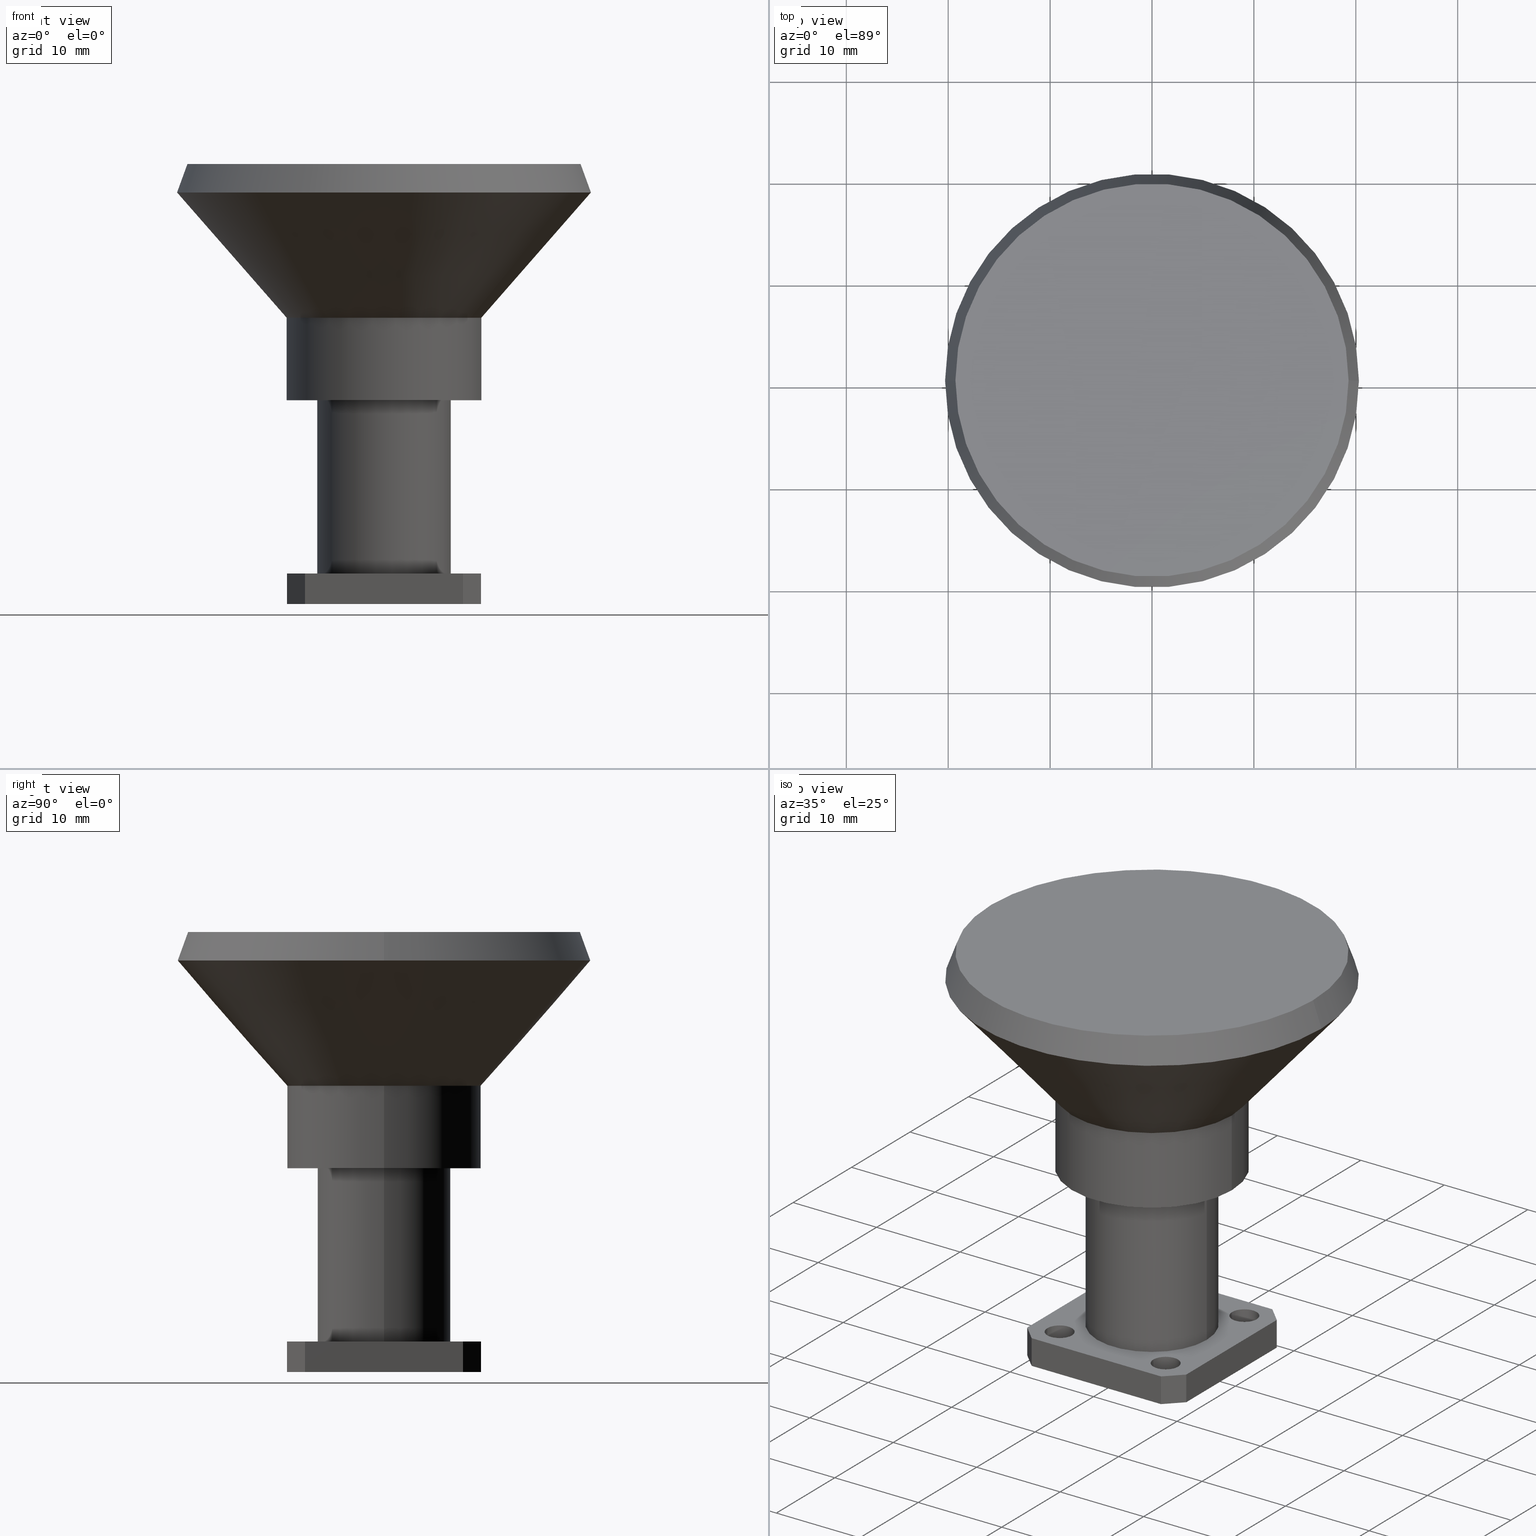
[diagram: canonical four-view strip — front | top / right | iso, engineering-drawing reading convention]
A machine part, canonical four-view strip (front | top / right | iso — engineering-drawing reading convention). The complete STEP part file that produces these views, byte-faithful:
ISO-10303-21;
HEADER;
FILE_DESCRIPTION (( 'STEP AP203' ),
    '1' );
FILE_NAME ('SAF-2434231535-328-S1.STEP',
    '2018-10-02T22:01:48',
    ( '' ),
    ( '' ),
    'SwSTEP 2.0',
    'SolidWorks 2016',
    '' );
FILE_SCHEMA (( 'CONFIG_CONTROL_DESIGN' ));
ENDSEC;

DATA;
#1 = CALENDAR_DATE ( 2018, 2, 10 ) ;
#2 = CARTESIAN_POINT ( 'NONE',  ( -0.3049999999999995500, -0.3750000000000001700, -1.699999999996315800 ) ) ;
#3 = CIRCLE ( 'NONE', #694, 0.7594999999999996200 ) ;
#4 = CC_DESIGN_APPROVAL ( #1038, ( #467 ) ) ;
#5 = DIRECTION ( 'NONE',  ( 1.000000000000000000, 0.0000000000000000000, -1.224646799147353200E-016 ) ) ;
#6 = ORIENTED_EDGE ( 'NONE', *, *, #310, .T. ) ;
#7 = DIRECTION ( 'NONE',  ( -1.000000000000000000, 0.0000000000000000000, 0.0000000000000000000 ) ) ;
#8 = EDGE_CURVE ( 'NONE', #1056, #395, #70, .T. ) ;
#9 = ORIENTED_EDGE ( 'NONE', *, *, #453, .T. ) ;
#10 = LINE ( 'NONE', #133, #410 ) ;
#11 = CARTESIAN_POINT ( 'NONE',  ( 0.3049999999999994900, 0.3749999999999998900, -1.699999999996315800 ) ) ;
#12 = ADVANCED_FACE ( 'NONE', ( #733 ), #797, .T. ) ;
#13 = FACE_BOUND ( 'NONE', #268, .T. ) ;
#14 = CARTESIAN_POINT ( 'NONE',  ( 2.083124205346053000E-016, 0.0000000000000000000, -2.935468927107230100E-012 ) ) ;
#15 = ORIENTED_EDGE ( 'NONE', *, *, #572, .F. ) ;
#16 = DIRECTION ( 'NONE',  ( 1.000000000000000000, 0.0000000000000000000, 0.0000000000000000000 ) ) ;
#17 = EDGE_LOOP ( 'NONE', ( #444, #755, #336, #199 ) ) ;
#18 = LOCAL_TIME ( 15, 1, 48.00000000000000000, #805 ) ;
#19 = DIRECTION ( 'NONE',  ( -0.6584277793867978600, 8.063414724957417900E-017, 0.7526439127049193700 ) ) ;
#20 = CARTESIAN_POINT ( 'NONE',  ( 0.3049999999999999400, -0.3750000000000001700, -1.581999999996315700 ) ) ;
#21 = CARTESIAN_POINT ( 'NONE',  ( 1.948535166980293900E-016, 0.0000000000000000000, -0.1099002899963155600 ) ) ;
#22 = ADVANCED_FACE ( 'NONE', ( #969 ), #462, .T. ) ;
#23 = FACE_OUTER_BOUND ( 'NONE', #251, .T. ) ;
#24 = EDGE_CURVE ( 'NONE', #992, #83, #313, .T. ) ;
#25 = VECTOR ( 'NONE', #738, 39.37007874015748100 ) ;
#26 = DIRECTION ( 'NONE',  ( -1.000000000000000000, 0.0000000000000000000, 0.0000000000000000000 ) ) ;
#27 = AXIS2_PLACEMENT_3D ( 'NONE', #375, #862, #38 ) ;
#28 = CYLINDRICAL_SURFACE ( 'NONE', #848, 0.1639999999647116000 ) ;
#29 = DIRECTION ( 'NONE',  ( -1.000000000000000000, 0.0000000000000000000, 0.0000000000000000000 ) ) ;
#30 = ORIENTED_EDGE ( 'NONE', *, *, #171, .T. ) ;
#31 = ORIENTED_EDGE ( 'NONE', *, *, #663, .F. ) ;
#32 = CARTESIAN_POINT ( 'NONE',  ( 0.3079999999999997700, 0.2650000000000001200, -1.581999999996315700 ) ) ;
#33 = ORIENTED_EDGE ( 'NONE', *, *, #714, .F. ) ;
#34 = EDGE_CURVE ( 'NONE', #325, #166, #776, .T. ) ;
#35 = CYLINDRICAL_SURFACE ( 'NONE', #1021, 0.05799999999999989900 ) ;
#36 = PERSON_AND_ORGANIZATION_ROLE ( 'creator' ) ;
#37 = DIRECTION ( 'NONE',  ( -0.3420201433256689300, 0.0000000000000000000, -0.9396926207859082100 ) ) ;
#38 = DIRECTION ( 'NONE',  ( -1.000000000000000000, 0.0000000000000000000, 0.0000000000000000000 ) ) ;
#39 = LINE ( 'NONE', #196, #691 ) ;
#40 = CARTESIAN_POINT ( 'NONE',  ( 0.2579999999647116200, 0.0000000000000000000, -0.9129999999963156500 ) ) ;
#41 = AXIS2_PLACEMENT_3D ( 'NONE', #426, #745, #993 ) ;
#42 = FACE_OUTER_BOUND ( 'NONE', #853, .T. ) ;
#43 = CC_DESIGN_PERSON_AND_ORGANIZATION_ASSIGNMENT ( #353, #847, ( #173 ) ) ;
#44 = CARTESIAN_POINT ( 'NONE',  ( 0.4689999999823555300, 0.2110000000176431600, -1.699999999996315800 ) ) ;
#45 = ORIENTED_EDGE ( 'NONE', *, *, #769, .F. ) ;
#46 = DIRECTION ( 'NONE',  ( -1.000000000000000000, 0.0000000000000000000, 0.0000000000000000000 ) ) ;
#47 = VECTOR ( 'NONE', #726, 39.37007874015748100 ) ;
#48 = AXIS2_PLACEMENT_3D ( 'NONE', #327, #404, #636 ) ;
#49 = ADVANCED_FACE ( 'NONE', ( #441 ), #28, .F. ) ;
#50 = DIRECTION ( 'NONE',  ( -0.0000000000000000000, -0.0000000000000000000, -1.000000000000000000 ) ) ;
#51 = EDGE_LOOP ( 'NONE', ( #256, #30, #555, #265 ) ) ;
#52 = CYLINDRICAL_SURFACE ( 'NONE', #208, 0.05799999999999989900 ) ;
#53 = LINE ( 'NONE', #585, #893 ) ;
#54 = EDGE_CURVE ( 'NONE', #417, #898, #933, .T. ) ;
#55 = DIRECTION ( 'NONE',  ( 1.224646799147353200E-016, 0.0000000000000000000, 1.000000000000000000 ) ) ;
#56 = ORIENTED_EDGE ( 'NONE', *, *, #770, .T. ) ;
#57 = ORIENTED_EDGE ( 'NONE', *, *, #719, .T. ) ;
#58 = DIRECTION ( 'NONE',  ( -1.000000000000000000, 0.0000000000000000000, 0.0000000000000000000 ) ) ;
#59 = VERTEX_POINT ( 'NONE', #169 ) ;
#60 = APPROVAL_DATE_TIME ( #281, #1011 ) ;
#61 = CONICAL_SURFACE ( 'NONE', #449, 0.7594999999999996200, 0.3490658503988660600 ) ;
#62 = EDGE_CURVE ( 'NONE', #194, #762, #743, .T. ) ;
#63 = DIRECTION ( 'NONE',  ( 1.224646799147353200E-016, 0.0000000000000000000, 1.000000000000000000 ) ) ;
#64 = ORIENTED_EDGE ( 'NONE', *, *, #233, .F. ) ;
#65 = ORIENTED_EDGE ( 'NONE', *, *, #421, .F. ) ;
#66 = EDGE_LOOP ( 'NONE', ( #274, #949 ) ) ;
#67 = ORIENTED_EDGE ( 'NONE', *, *, #849, .F. ) ;
#68 = DIRECTION ( 'NONE',  ( -1.000000000000000000, 9.106159978880877400E-017, 1.224646799147353200E-016 ) ) ;
#69 = CYLINDRICAL_SURFACE ( 'NONE', #915, 0.1639999999647116000 ) ;
#70 = LINE ( 'NONE', #783, #528 ) ;
#71 = EDGE_CURVE ( 'NONE', #170, #338, #452, .T. ) ;
#72 = EDGE_CURVE ( 'NONE', #417, #1018, #825, .T. ) ;
#73 = ORIENTED_EDGE ( 'NONE', *, *, #125, .F. ) ;
#74 = DIRECTION ( 'NONE',  ( -1.224646799147354900E-016, 0.0000000000000000000, -1.000000000000000000 ) ) ;
#75 = EDGE_LOOP ( 'NONE', ( #505, #424, #207, #618 ) ) ;
#76 = FACE_OUTER_BOUND ( 'NONE', #701, .T. ) ;
#77 = DIRECTION ( 'NONE',  ( -0.0000000000000000000, -0.0000000000000000000, -1.000000000000000000 ) ) ;
#78 = PERSON ( 'UNSPECIFIED', 'UNSPECIFIED', 'UNSPECIFIED', ('UNSPECIFIED'), ('UNSPECIFIED'), ('UNSPECIFIED') ) ;
#79 = CYLINDRICAL_SURFACE ( 'NONE', #152, 0.05799999999999989900 ) ;
#80 = CIRCLE ( 'NONE', #621, 0.05799999999999989900 ) ;
#81 = PLANE ( 'NONE',  #638 ) ;
#82 = CARTESIAN_POINT ( 'NONE',  ( 0.7994999999999999900, 0.0000000000000000000, -0.1099002899963156700 ) ) ;
#83 = VERTEX_POINT ( 'NONE', #82 ) ;
#84 = EDGE_CURVE ( 'NONE', #798, #879, #857, .T. ) ;
#85 = DIRECTION ( 'NONE',  ( 0.7071067811865469100, -0.7071067811865482400, -0.0000000000000000000 ) ) ;
#86 = AXIS2_PLACEMENT_3D ( 'NONE', #456, #1014, #1007 ) ;
#87 = CARTESIAN_POINT ( 'NONE',  ( 0.1919999999999998700, -0.2649999999999999000, -1.699999999996315800 ) ) ;
#88 = APPROVAL_PERSON_ORGANIZATION ( #544, #1011, #937 ) ;
#89 = VECTOR ( 'NONE', #162, 39.37007874015748100 ) ;
#90 = CARTESIAN_POINT ( 'NONE',  ( 0.2579999999647115700, 0.0000000000000000000, -1.581999999996315700 ) ) ;
#91 = DIRECTION ( 'NONE',  ( -0.0000000000000000000, -0.0000000000000000000, -1.000000000000000000 ) ) ;
#92 = AXIS2_PLACEMENT_3D ( 'NONE', #709, #1043, #1036 ) ;
#93 = DIRECTION ( 'NONE',  ( -0.7071067811865461300, 0.7071067811865487900, -0.0000000000000000000 ) ) ;
#94 = ORIENTED_EDGE ( 'NONE', *, *, #490, .T. ) ;
#95 = CARTESIAN_POINT ( 'NONE',  ( 0.3749999999999997800, -0.3050000000000009400, -1.581999999996315700 ) ) ;
#96 = VECTOR ( 'NONE', #804, 39.37007874015748100 ) ;
#97 = CC_DESIGN_APPROVAL ( #1011, ( #173 ) ) ;
#98 = DIRECTION ( 'NONE',  ( -0.0000000000000000000, -0.0000000000000000000, -1.000000000000000000 ) ) ;
#99 = ORIENTED_EDGE ( 'NONE', *, *, #792, .T. ) ;
#100 = ORIENTED_EDGE ( 'NONE', *, *, #827, .F. ) ;
#101 = ADVANCED_FACE ( 'NONE', ( #630, #1042, #261, #13, #401, #187 ), #896, .F. ) ;
#102 = CARTESIAN_POINT ( 'NONE',  ( 1.948536628247463100E-016, 0.0000000000000000000, -0.1098990967811205400 ) ) ;
#103 = CIRCLE ( 'NONE', #869, 0.3759999999647114500 ) ;
#104 = CC_DESIGN_DATE_AND_TIME_ASSIGNMENT ( #749, #932, ( #173 ) ) ;
#105 = CARTESIAN_POINT ( 'NONE',  ( 0.1639999999647116000, 0.0000000000000000000, -1.689999999996315800 ) ) ;
#106 = ADVANCED_FACE ( 'NONE', ( #42 ), #978, .T. ) ;
#107 = DIRECTION ( 'NONE',  ( 1.000000000000000000, 0.0000000000000000000, 0.0000000000000000000 ) ) ;
#108 = VECTOR ( 'NONE', #624, 39.37007874015748100 ) ;
#109 = DIRECTION ( 'NONE',  ( -1.000000000000000000, 0.0000000000000000000, 0.0000000000000000000 ) ) ;
#110 = VECTOR ( 'NONE', #567, 39.37007874015748100 ) ;
#111 = DIRECTION ( 'NONE',  ( -1.000000000000000000, 0.0000000000000000000, 0.0000000000000000000 ) ) ;
#112 = EDGE_CURVE ( 'NONE', #59, #340, #582, .T. ) ;
#113 = DIRECTION ( 'NONE',  ( 1.000000000000000000, 0.0000000000000000000, 0.0000000000000000000 ) ) ;
#114 = CARTESIAN_POINT ( 'NONE',  ( 9.650216777326263200E-017, 0.0000000000000000000, -0.9129999999963156500 ) ) ;
#115 = EDGE_LOOP ( 'NONE', ( #65, #119 ) ) ;
#116 = CIRCLE ( 'NONE', #287, 0.05799999999999993400 ) ;
#117 = DIRECTION ( 'NONE',  ( -0.0000000000000000000, -0.0000000000000000000, -1.000000000000000000 ) ) ;
#118 = PERSON_AND_ORGANIZATION_ROLE ( 'design_owner' ) ;
#119 = ORIENTED_EDGE ( 'NONE', *, *, #591, .F. ) ;
#120 = CARTESIAN_POINT ( 'NONE',  ( 0.3749999999999997800, -0.3050000000000009400, -1.581999999996315700 ) ) ;
#121 = DATE_TIME_ROLE ( 'creation_date' ) ;
#122 = CC_DESIGN_APPROVAL ( #675, ( #710 ) ) ;
#123 = ORIENTED_EDGE ( 'NONE', *, *, #84, .T. ) ;
#124 = CARTESIAN_POINT ( 'NONE',  ( -0.3049999999999995500, -0.3750000000000001700, -1.581999999996315700 ) ) ;
#125 = EDGE_CURVE ( 'NONE', #1035, #503, #1001, .T. ) ;
#126 = EDGE_CURVE ( 'NONE', #659, #598, #1040, .T. ) ;
#127 = CIRCLE ( 'NONE', #740, 0.05800000000000000300 ) ;
#128 = CARTESIAN_POINT ( 'NONE',  ( -0.3750000000000002200, 0.3050000000000001000, -1.581999999996315700 ) ) ;
#129 = VECTOR ( 'NONE', #767, 39.37007874015748100 ) ;
#130 = CIRCLE ( 'NONE', #923, 0.1639999999647116000 ) ;
#131 = VERTEX_POINT ( 'NONE', #975 ) ;
#132 = ORIENTED_EDGE ( 'NONE', *, *, #397, .F. ) ;
#133 = CARTESIAN_POINT ( 'NONE',  ( 0.3749999999999998300, 0.3749999999999998900, -1.581999999996315700 ) ) ;
#134 = APPROVAL_PERSON_ORGANIZATION ( #951, #1038, #1005 ) ;
#135 = CIRCLE ( 'NONE', #603, 0.05799999999999989900 ) ;
#136 = CARTESIAN_POINT ( 'NONE',  ( 0.2499999999999997500, -0.2649999999999999000, -1.581999999996315700 ) ) ;
#137 = DIRECTION ( 'NONE',  ( 1.224646799147353200E-016, 0.0000000000000000000, 1.000000000000000000 ) ) ;
#138 = EDGE_LOOP ( 'NONE', ( #309, #541, #227, #432, #873, #123, #1004, #888 ) ) ;
#139 = ORIENTED_EDGE ( 'NONE', *, *, #144, .F. ) ;
#140 = DESIGN_CONTEXT ( 'detailed design', #295, 'design' ) ;
#141 = ORIENTED_EDGE ( 'NONE', *, *, #912, .F. ) ;
#142 = LINE ( 'NONE', #1054, #110 ) ;
#143 = AXIS2_PLACEMENT_3D ( 'NONE', #146, #703, #316 ) ;
#144 = EDGE_CURVE ( 'NONE', #1037, #463, #787, .T. ) ;
#145 = EDGE_LOOP ( 'NONE', ( #716, #579 ) ) ;
#146 = CARTESIAN_POINT ( 'NONE',  ( 0.2579999999647116200, 0.0000000000000000000, -1.689999999996315800 ) ) ;
#147 = ORIENTED_EDGE ( 'NONE', *, *, #246, .T. ) ;
#148 = CC_DESIGN_SECURITY_CLASSIFICATION ( #173, ( #710 ) ) ;
#149 = DIRECTION ( 'NONE',  ( 1.000000000000000000, 0.0000000000000000000, 0.0000000000000000000 ) ) ;
#150 = APPROVAL_DATE_TIME ( #377, #675 ) ;
#151 = FACE_BOUND ( 'NONE', #145, .T. ) ;
#152 = AXIS2_PLACEMENT_3D ( 'NONE', #676, #604, #683 ) ;
#153 = CARTESIAN_POINT ( 'NONE',  ( -0.3080000000000001100, 0.2650000000000001200, -1.699999999996315800 ) ) ;
#154 = AXIS2_PLACEMENT_3D ( 'NONE', #114, #180, #16 ) ;
#155 = VECTOR ( 'NONE', #954, 39.37007874015748100 ) ;
#156 = CARTESIAN_POINT ( 'NONE',  ( 1.457329691030468400E-017, 0.0000000000000000000, -1.699999999996315800 ) ) ;
#157 = VECTOR ( 'NONE', #724, 39.37007874015748100 ) ;
#158 = CARTESIAN_POINT ( 'NONE',  ( -0.3750000000000002200, 0.3749999999999998900, -1.581999999996315700 ) ) ;
#159 = ORIENTED_EDGE ( 'NONE', *, *, #927, .T. ) ;
#160 = CARTESIAN_POINT ( 'NONE',  ( 0.3079999999999997200, -0.2649999999999999000, -1.699999999996315800 ) ) ;
#161 = COORDINATED_UNIVERSAL_TIME_OFFSET ( 8, 0, .BEHIND. ) ;
#162 = DIRECTION ( 'NONE',  ( 1.224646799147353200E-016, 0.0000000000000000000, 1.000000000000000000 ) ) ;
#163 = CARTESIAN_POINT ( 'NONE',  ( 0.3079999999999997200, 0.2650000000000001200, -1.699999999996315800 ) ) ;
#164 = EDGE_CURVE ( 'NONE', #593, #860, #130, .T. ) ;
#165 = DIRECTION ( 'NONE',  ( -1.224646799147353200E-016, 0.0000000000000000000, -1.000000000000000000 ) ) ;
#166 = VERTEX_POINT ( 'NONE', #634 ) ;
#167 = CARTESIAN_POINT ( 'NONE',  ( -0.2500000000000001700, 0.2650000000000001200, -1.699999999996315800 ) ) ;
#168 = ORIENTED_EDGE ( 'NONE', *, *, #546, .T. ) ;
#169 = CARTESIAN_POINT ( 'NONE',  ( -0.2579999999647114000, 3.159588741368012100E-017, -0.9129999999963156500 ) ) ;
#170 = VERTEX_POINT ( 'NONE', #1046 ) ;
#171 = EDGE_CURVE ( 'NONE', #879, #657, #142, .T. ) ;
#172 = ORIENTED_EDGE ( 'NONE', *, *, #510, .F. ) ;
#173 = SECURITY_CLASSIFICATION ( '', '', #763 ) ;
#174 = COORDINATED_UNIVERSAL_TIME_OFFSET ( 8, 0, .BEHIND. ) ;
#175 = CYLINDRICAL_SURFACE ( 'NONE', #938, 0.05799999999999986400 ) ;
#176 = ADVANCED_FACE ( 'NONE', ( #968 ), #322, .T. ) ;
#177 = DIRECTION ( 'NONE',  ( 1.224646799147353200E-016, 0.0000000000000000000, 1.000000000000000000 ) ) ;
#178 = EDGE_CURVE ( 'NONE', #858, #170, #461, .T. ) ;
#179 = EDGE_LOOP ( 'NONE', ( #57, #6 ) ) ;
#180 = DIRECTION ( 'NONE',  ( 1.224646799147353200E-016, 0.0000000000000000000, 1.000000000000000000 ) ) ;
#181 = ORIENTED_EDGE ( 'NONE', *, *, #961, .F. ) ;
#182 = ORIENTED_EDGE ( 'NONE', *, *, #164, .F. ) ;
#183 = DIRECTION ( 'NONE',  ( -0.0000000000000000000, 0.0000000000000000000, -1.000000000000000000 ) ) ;
#184 = LINE ( 'NONE', #959, #911 ) ;
#185 = ADVANCED_FACE ( 'NONE', ( #958 ), #302, .F. ) ;
#186 = FACE_OUTER_BOUND ( 'NONE', #525, .T. ) ;
#187 = FACE_BOUND ( 'NONE', #821, .T. ) ;
#188 = EDGE_LOOP ( 'NONE', ( #835, #820 ) ) ;
#189 = DIRECTION ( 'NONE',  ( -1.000000000000000000, 0.0000000000000000000, 0.0000000000000000000 ) ) ;
#190 = ORIENTED_EDGE ( 'NONE', *, *, #546, .F. ) ;
#191 = DIRECTION ( 'NONE',  ( 1.000000000000000000, 0.0000000000000000000, -1.281354593651155500E-016 ) ) ;
#192 = DIRECTION ( 'NONE',  ( 1.224646799147353200E-016, 0.0000000000000000000, 1.000000000000000000 ) ) ;
#193 = EDGE_CURVE ( 'NONE', #702, #380, #641, .T. ) ;
#194 = VERTEX_POINT ( 'NONE', #331 ) ;
#195 = DIRECTION ( 'NONE',  ( 0.6584277793867980800, 0.0000000000000000000, 0.7526439127049191500 ) ) ;
#196 = CARTESIAN_POINT ( 'NONE',  ( 0.1919999999999999200, 0.2650000000000001200, -1.699999999996315800 ) ) ;
#197 = ORIENTED_EDGE ( 'NONE', *, *, #292, .T. ) ;
#198 = VERTEX_POINT ( 'NONE', #654 ) ;
#199 = ORIENTED_EDGE ( 'NONE', *, *, #329, .T. ) ;
#200 = AXIS2_PLACEMENT_3D ( 'NONE', #394, #74, #419 ) ;
#201 = EDGE_CURVE ( 'NONE', #1037, #867, #80, .T. ) ;
#202 = ORIENTED_EDGE ( 'NONE', *, *, #343, .F. ) ;
#203 = FACE_BOUND ( 'NONE', #188, .T. ) ;
#204 = CARTESIAN_POINT ( 'NONE',  ( -0.7594999999999994000, 0.0000000000000000000, -2.935375915182835100E-012 ) ) ;
#205 =( NAMED_UNIT ( * ) PLANE_ANGLE_UNIT ( ) SI_UNIT ( $, .RADIAN. ) );
#206 = EDGE_LOOP ( 'NONE', ( #386, #566, #707, #836 ) ) ;
#207 = ORIENTED_EDGE ( 'NONE', *, *, #572, .T. ) ;
#208 = AXIS2_PLACEMENT_3D ( 'NONE', #293, #117, #939 ) ;
#209 = LINE ( 'NONE', #966, #96 ) ;
#210 =( NAMED_UNIT ( * ) SI_UNIT ( $, .STERADIAN. ) SOLID_ANGLE_UNIT ( ) );
#211 = VECTOR ( 'NONE', #319, 39.37007874015748100 ) ;
#212 = CARTESIAN_POINT ( 'NONE',  ( -0.3049999999999998300, -0.3750000000000001700, -1.581999999996315700 ) ) ;
#213 = ORIENTED_EDGE ( 'NONE', *, *, #440, .T. ) ;
#214 = ORIENTED_EDGE ( 'NONE', *, *, #927, .F. ) ;
#215 = ORIENTED_EDGE ( 'NONE', *, *, #900, .F. ) ;
#216 = CARTESIAN_POINT ( 'NONE',  ( 0.3049999999999999400, -0.3750000000000001700, -1.699999999996315800 ) ) ;
#217 = AXIS2_PLACEMENT_3D ( 'NONE', #415, #495, #189 ) ;
#218 = CARTESIAN_POINT ( 'NONE',  ( 0.0000000000000000000, 0.0000000000000000000, -1.701000000000000100 ) ) ;
#219 = DATE_AND_TIME ( #420, #863 ) ;
#220 = CARTESIAN_POINT ( 'NONE',  ( 0.1919999999999997500, -0.2649999999999999000, -1.699999999996315800 ) ) ;
#221 = ORIENTED_EDGE ( 'NONE', *, *, #34, .F. ) ;
#222 = FACE_OUTER_BOUND ( 'NONE', #314, .T. ) ;
#223 = VECTOR ( 'NONE', #434, 39.37007874015748100 ) ;
#224 = DIRECTION ( 'NONE',  ( 1.224646799147353200E-016, 0.0000000000000000000, 1.000000000000000000 ) ) ;
#225 = ORIENTED_EDGE ( 'NONE', *, *, #379, .F. ) ;
#226 = CARTESIAN_POINT ( 'NONE',  ( 0.1919999999999998100, 0.2650000000000001200, -1.699999999996315800 ) ) ;
#227 = ORIENTED_EDGE ( 'NONE', *, *, #8, .T. ) ;
#228 = LOCAL_TIME ( 15, 1, 48.00000000000000000, #925 ) ;
#229 = EDGE_CURVE ( 'NONE', #1056, #198, #383, .T. ) ;
#230 = FACE_OUTER_BOUND ( 'NONE', #499, .T. ) ;
#231 = VECTOR ( 'NONE', #55, 39.37007874015748100 ) ;
#232 = EDGE_CURVE ( 'NONE', #1048, #798, #53, .T. ) ;
#233 = EDGE_CURVE ( 'NONE', #945, #325, #693, .T. ) ;
#234 = DIRECTION ( 'NONE',  ( -0.0000000000000000000, -0.0000000000000000000, -1.000000000000000000 ) ) ;
#235 = VECTOR ( 'NONE', #571, 39.37007874015748100 ) ;
#236 = ORIENTED_EDGE ( 'NONE', *, *, #304, .F. ) ;
#237 = CARTESIAN_POINT ( 'NONE',  ( 1.948535166980293900E-016, 0.0000000000000000000, -0.1099002899963155600 ) ) ;
#238 = APPROVAL_DATE_TIME ( #219, #1038 ) ;
#239 = ORIENTED_EDGE ( 'NONE', *, *, #600, .T. ) ;
#240 = DIRECTION ( 'NONE',  ( -0.0000000000000000000, -0.0000000000000000000, -1.000000000000000000 ) ) ;
#241 = CARTESIAN_POINT ( 'NONE',  ( 1.445083222993876700E-017, 0.0000000000000000000, -1.581999999996315700 ) ) ;
#242 = ORIENTED_EDGE ( 'NONE', *, *, #600, .F. ) ;
#243 = EDGE_LOOP ( 'NONE', ( #695, #708 ) ) ;
#244 = CIRCLE ( 'NONE', #428, 0.3759999999647114500 ) ;
#245 = AXIS2_PLACEMENT_3D ( 'NONE', #889, #406, #254 ) ;
#246 = EDGE_CURVE ( 'NONE', #320, #398, #731, .T. ) ;
#247 = ORIENTED_EDGE ( 'NONE', *, *, #379, .T. ) ;
#248 = ORIENTED_EDGE ( 'NONE', *, *, #875, .F. ) ;
#249 = CC_DESIGN_PERSON_AND_ORGANIZATION_ASSIGNMENT ( #390, #118, ( #407 ) ) ;
#250 = DIRECTION ( 'NONE',  ( 1.224646799147353200E-016, 0.0000000000000000000, 1.000000000000000000 ) ) ;
#251 = EDGE_LOOP ( 'NONE', ( #606, #168, #597, #607 ) ) ;
#252 = DIRECTION ( 'NONE',  ( -0.0000000000000000000, -0.0000000000000000000, -1.000000000000000000 ) ) ;
#253 = FACE_OUTER_BOUND ( 'NONE', #206, .T. ) ;
#254 = DIRECTION ( 'NONE',  ( 1.000000000000000000, 0.0000000000000000000, 0.0000000000000000000 ) ) ;
#255 = DIRECTION ( 'NONE',  ( -1.000000000000000000, 0.0000000000000000000, 1.224646799147353200E-016 ) ) ;
#256 = ORIENTED_EDGE ( 'NONE', *, *, #651, .F. ) ;
#257 = VERTEX_POINT ( 'NONE', #105 ) ;
#258 = ADVANCED_FACE ( 'NONE', ( #1024 ), #362, .T. ) ;
#259 = LINE ( 'NONE', #451, #501 ) ;
#260 = CARTESIAN_POINT ( 'NONE',  ( 2.083124205346053000E-016, 0.0000000000000000000, -2.935468927107230100E-012 ) ) ;
#261 = FACE_BOUND ( 'NONE', #243, .T. ) ;
#262 = CARTESIAN_POINT ( 'NONE',  ( -0.3049999999999998800, 0.3749999999999998900, -1.581999999996315700 ) ) ;
#263 = ORIENTED_EDGE ( 'NONE', *, *, #673, .T. ) ;
#264 = AXIS2_PLACEMENT_3D ( 'NONE', #136, #786, #859 ) ;
#265 = ORIENTED_EDGE ( 'NONE', *, *, #178, .T. ) ;
#266 = PLANE ( 'NONE',  #986 ) ;
#267 = ADVANCED_FACE ( 'NONE', ( #759 ), #439, .T. ) ;
#268 = EDGE_LOOP ( 'NONE', ( #213, #430 ) ) ;
#269 = AXIS2_PLACEMENT_3D ( 'NONE', #167, #252, #642 ) ;
#270 = DIRECTION ( 'NONE',  ( -1.000000000000000000, 0.0000000000000000000, 0.0000000000000000000 ) ) ;
#271 = LINE ( 'NONE', #557, #952 ) ;
#272 = CARTESIAN_POINT ( 'NONE',  ( 2.083124205346052800E-016, 0.0000000000000000000, -2.935643853991617400E-012 ) ) ;
#273 = AXIS2_PLACEMENT_3D ( 'NONE', #370, #356, #113 ) ;
#274 = ORIENTED_EDGE ( 'NONE', *, *, #753, .T. ) ;
#275 = FACE_OUTER_BOUND ( 'NONE', #51, .T. ) ;
#276 = EDGE_LOOP ( 'NONE', ( #746, #828, #841, #801 ) ) ;
#277 = EDGE_CURVE ( 'NONE', #860, #1029, #312, .T. ) ;
#278 = DIRECTION ( 'NONE',  ( 1.224646799147353200E-016, 0.0000000000000000000, 1.000000000000000000 ) ) ;
#279 = VERTEX_POINT ( 'NONE', #262 ) ;
#280 = DIRECTION ( 'NONE',  ( -1.000000000000000000, 0.0000000000000000000, 1.224646799144300100E-016 ) ) ;
#281 = DATE_AND_TIME ( #492, #228 ) ;
#282 = CARTESIAN_POINT ( 'NONE',  ( -0.3080000000000001100, 0.2650000000000001200, -1.581999999996315700 ) ) ;
#283 = LINE ( 'NONE', #894, #89 ) ;
#284 = DIRECTION ( 'NONE',  ( -1.224646799147353200E-016, -0.0000000000000000000, -1.000000000000000000 ) ) ;
#285 = ORIENTED_EDGE ( 'NONE', *, *, #201, .T. ) ;
#286 = ORIENTED_EDGE ( 'NONE', *, *, #277, .T. ) ;
#287 = AXIS2_PLACEMENT_3D ( 'NONE', #817, #902, #721 ) ;
#288 = CONICAL_SURFACE ( 'NONE', #554, 0.7994999999999998800, 0.7187279169351729100 ) ;
#289 = CARTESIAN_POINT ( 'NONE',  ( -0.1920000000000003400, -0.2649999999999999000, -1.581999999996315700 ) ) ;
#290 = EDGE_LOOP ( 'NONE', ( #159, #979, #711, #866 ) ) ;
#291 = APPLICATION_PROTOCOL_DEFINITION ( 'international standard', 'config_control_design', 1994, #527 ) ;
#292 = EDGE_CURVE ( 'NONE', #1018, #909, #610, .T. ) ;
#293 = CARTESIAN_POINT ( 'NONE',  ( 0.2499999999999997500, -0.2649999999999999000, -1.699999999996315800 ) ) ;
#294 = AXIS2_PLACEMENT_3D ( 'NONE', #120, #592, #1009 ) ;
#295 = APPLICATION_CONTEXT ( 'configuration controlled 3d designs of mechanical parts and assemblies' ) ;
#296 = LINE ( 'NONE', #653, #47 ) ;
#297 = CARTESIAN_POINT ( 'NONE',  ( 0.2499999999999997500, -0.2649999999999999000, -1.699999999996315800 ) ) ;
#298 = ADVANCED_FACE ( 'NONE', ( #186 ), #831, .F. ) ;
#299 = DIRECTION ( 'NONE',  ( -0.0000000000000000000, -0.0000000000000000000, -1.000000000000000000 ) ) ;
#300 = ORIENTED_EDGE ( 'NONE', *, *, #411, .F. ) ;
#301 = LINE ( 'NONE', #599, #129 ) ;
#302 = CYLINDRICAL_SURFACE ( 'NONE', #217, 0.05799999999999993400 ) ;
#303 = CARTESIAN_POINT ( 'NONE',  ( -0.3080000000000001600, 0.2650000000000001200, -1.699999999996315800 ) ) ;
#304 = EDGE_CURVE ( 'NONE', #945, #403, #811, .T. ) ;
#305 = CALENDAR_DATE ( 2018, 2, 10 ) ;
#306 = LINE ( 'NONE', #153, #737 ) ;
#307 = AXIS2_PLACEMENT_3D ( 'NONE', #806, #914, #422 ) ;
#308 = CARTESIAN_POINT ( 'NONE',  ( -0.2500000000000002200, -0.2649999999999999000, -1.581999999996315700 ) ) ;
#309 = ORIENTED_EDGE ( 'NONE', *, *, #609, .T. ) ;
#310 = EDGE_CURVE ( 'NONE', #1029, #257, #620, .T. ) ;
#311 = CARTESIAN_POINT ( 'NONE',  ( -0.2500000000000002200, -0.2649999999999999000, -1.699999999996315800 ) ) ;
#312 = LINE ( 'NONE', #741, #223 ) ;
#313 = CIRCLE ( 'NONE', #92, 0.7994999999999998800 ) ;
#314 = EDGE_LOOP ( 'NONE', ( #660, #515, #670, #1034 ) ) ;
#315 = CARTESIAN_POINT ( 'NONE',  ( 0.3049999999999999400, -0.3750000000000001700, -1.581999999996315700 ) ) ;
#316 = DIRECTION ( 'NONE',  ( -1.000000000000000000, 0.0000000000000000000, 1.224646799147353200E-016 ) ) ;
#317 = AXIS2_PLACEMENT_3D ( 'NONE', #297, #692, #58 ) ;
#318 = CIRCLE ( 'NONE', #269, 0.05800000000000000300 ) ;
#319 = DIRECTION ( 'NONE',  ( -0.7071067811865469100, 0.7071067811865482400, 8.659560562354925500E-017 ) ) ;
#320 = VERTEX_POINT ( 'NONE', #20 ) ;
#321 = CIRCLE ( 'NONE', #317, 0.05800000000000000300 ) ;
#322 = CYLINDRICAL_SURFACE ( 'NONE', #448, 0.3759999999647115100 ) ;
#323 = CARTESIAN_POINT ( 'NONE',  ( 0.1919999999999998700, -0.2649999999999999000, -1.581999999996315700 ) ) ;
#324 = DIRECTION ( 'NONE',  ( -1.000000000000000000, 0.0000000000000000000, 0.0000000000000000000 ) ) ;
#325 = VERTEX_POINT ( 'NONE', #516 ) ;
#326 = CARTESIAN_POINT ( 'NONE',  ( -0.2500000000000002200, -0.2649999999999999000, -1.699999999996315800 ) ) ;
#327 = CARTESIAN_POINT ( 'NONE',  ( 9.650216777326263200E-017, 0.0000000000000000000, -0.9129999999963156500 ) ) ;
#328 = SHAPE_DEFINITION_REPRESENTATION ( #744, #886 ) ;
#329 = EDGE_CURVE ( 'NONE', #785, #395, #486, .T. ) ;
#330 = FACE_OUTER_BOUND ( 'NONE', #138, .T. ) ;
#331 = CARTESIAN_POINT ( 'NONE',  ( 0.3079999999999997200, -0.2649999999999999000, -1.581999999996315700 ) ) ;
#332 = ORIENTED_EDGE ( 'NONE', *, *, #453, .F. ) ;
#333 = DIRECTION ( 'NONE',  ( 1.000000000000000000, 0.0000000000000000000, -1.224646799144300100E-016 ) ) ;
#334 = UNCERTAINTY_MEASURE_WITH_UNIT (LENGTH_MEASURE( 1.000000000000000100E-005 ), #594, 'distance_accuracy_value', 'NONE');
#335 = EDGE_CURVE ( 'NONE', #83, #325, #667, .T. ) ;
#336 = ORIENTED_EDGE ( 'NONE', *, *, #769, .T. ) ;
#337 = CARTESIAN_POINT ( 'NONE',  ( 0.3049999999999994900, 0.3749999999999998900, -1.581999999996315700 ) ) ;
#338 = VERTEX_POINT ( 'NONE', #764 ) ;
#339 = CARTESIAN_POINT ( 'NONE',  ( -0.2500000000000001700, 0.2650000000000001200, -1.581999999996315700 ) ) ;
#340 = VERTEX_POINT ( 'NONE', #40 ) ;
#341 = CARTESIAN_POINT ( 'NONE',  ( 1.355684006660631900E-016, 0.0000000000000000000, -0.5939999999963157000 ) ) ;
#342 = FACE_BOUND ( 'NONE', #919, .T. ) ;
#343 = EDGE_CURVE ( 'NONE', #395, #1048, #947, .T. ) ;
#344 = CARTESIAN_POINT ( 'NONE',  ( 2.083124205346052800E-016, 0.0000000000000000000, -2.935643853991617400E-012 ) ) ;
#345 = FACE_OUTER_BOUND ( 'NONE', #551, .T. ) ;
#346 = DIRECTION ( 'NONE',  ( 1.224646799147353200E-016, 0.0000000000000000000, 1.000000000000000000 ) ) ;
#347 = ADVANCED_FACE ( 'NONE', ( #718 ), #550, .F. ) ;
#348 = VECTOR ( 'NONE', #513, 39.37007874015748100 ) ;
#349 = VECTOR ( 'NONE', #962, 39.37007874015748100 ) ;
#350 = CARTESIAN_POINT ( 'NONE',  ( 0.3759999999647116200, 0.0000000000000000000, -0.5939999999963158100 ) ) ;
#351 = ADVANCED_FACE ( 'NONE', ( #1039 ), #361, .F. ) ;
#352 = ORIENTED_EDGE ( 'NONE', *, *, #62, .F. ) ;
#353 = PERSON_AND_ORGANIZATION ( #78, #674 ) ;
#354 = DIRECTION ( 'NONE',  ( -1.224646799147354900E-016, 0.0000000000000000000, -1.000000000000000000 ) ) ;
#355 = LINE ( 'NONE', #581, #926 ) ;
#356 = DIRECTION ( 'NONE',  ( 0.0000000000000000000, 0.0000000000000000000, 1.000000000000000000 ) ) ;
#357 = AXIS2_PLACEMENT_3D ( 'NONE', #559, #729, #5 ) ;
#358 = CARTESIAN_POINT ( 'NONE',  ( 0.2499999999999997500, -0.2649999999999999000, -1.581999999996315700 ) ) ;
#359 = AXIS2_PLACEMENT_3D ( 'NONE', #344, #354, #280 ) ;
#360 = EDGE_LOOP ( 'NONE', ( #242, #736, #202, #416 ) ) ;
#361 = PLANE ( 'NONE',  #294 ) ;
#362 = CYLINDRICAL_SURFACE ( 'NONE', #672, 0.7994999999999997700 ) ;
#363 = DIRECTION ( 'NONE',  ( 0.0000000000000000000, 0.0000000000000000000, 1.000000000000000000 ) ) ;
#364 = EDGE_CURVE ( 'NONE', #657, #858, #301, .T. ) ;
#365 = ORIENTED_EDGE ( 'NONE', *, *, #411, .T. ) ;
#366 = DIRECTION ( 'NONE',  ( -1.000000000000000000, 0.0000000000000000000, 0.0000000000000000000 ) ) ;
#367 = CARTESIAN_POINT ( 'NONE',  ( 0.3749999999999997800, -0.3050000000000006600, -1.699999999996315800 ) ) ;
#368 = VECTOR ( 'NONE', #98, 39.37007874015748100 ) ;
#369 = APPROVAL_STATUS ( 'not_yet_approved' ) ;
#370 = CARTESIAN_POINT ( 'NONE',  ( 1.457329691030468400E-017, 0.0000000000000000000, -1.699999999996315800 ) ) ;
#371 = AXIS2_PLACEMENT_3D ( 'NONE', #308, #950, #378 ) ;
#372 =( LENGTH_UNIT ( ) NAMED_UNIT ( * ) SI_UNIT ( $, .METRE. ) );
#373 = CYLINDRICAL_SURFACE ( 'NONE', #861, 0.2579999999647115700 ) ;
#374 = ADVANCED_FACE ( 'NONE', ( #1013 ), #79, .F. ) ;
#375 = CARTESIAN_POINT ( 'NONE',  ( 0.2499999999999997500, -0.2649999999999999000, -1.699999999996315800 ) ) ;
#376 = ORIENTED_EDGE ( 'NONE', *, *, #126, .T. ) ;
#377 = DATE_AND_TIME ( #587, #18 ) ;
#378 = DIRECTION ( 'NONE',  ( -1.000000000000000000, 0.0000000000000000000, 0.0000000000000000000 ) ) ;
#379 = EDGE_CURVE ( 'NONE', #403, #166, #1012, .T. ) ;
#380 = VERTEX_POINT ( 'NONE', #282 ) ;
#381 = ORIENTED_EDGE ( 'NONE', *, *, #995, .F. ) ;
#382 = DIRECTION ( 'NONE',  ( 1.000000000000000000, 0.0000000000000000000, 0.0000000000000000000 ) ) ;
#383 = LINE ( 'NONE', #826, #348 ) ;
#384 = DIRECTION ( 'NONE',  ( 0.7071067811865482400, 0.7071067811865469100, -8.659560562354941500E-017 ) ) ;
#385 = EDGE_LOOP ( 'NONE', ( #955, #182, #365, #628 ) ) ;
#386 = ORIENTED_EDGE ( 'NONE', *, *, #471, .T. ) ;
#387 = ORIENTED_EDGE ( 'NONE', *, *, #792, .F. ) ;
#388 = EDGE_CURVE ( 'NONE', #860, #593, #892, .T. ) ;
#389 = DIRECTION ( 'NONE',  ( -0.0000000000000000000, -0.0000000000000000000, -1.000000000000000000 ) ) ;
#390 = PERSON_AND_ORGANIZATION ( #78, #674 ) ;
#391 = FACE_OUTER_BOUND ( 'NONE', #17, .T. ) ;
#392 = AXIS2_PLACEMENT_3D ( 'NONE', #21, #834, #191 ) ;
#393 = DIRECTION ( 'NONE',  ( 1.000000000000000000, 0.0000000000000000000, -1.281354593651155500E-016 ) ) ;
#394 = CARTESIAN_POINT ( 'NONE',  ( 1.948536628247463100E-016, 0.0000000000000000000, -0.1098990967811205400 ) ) ;
#395 = VERTEX_POINT ( 'NONE', #367 ) ;
#396 = ORIENTED_EDGE ( 'NONE', *, *, #953, .T. ) ;
#397 = EDGE_CURVE ( 'NONE', #867, #586, #39, .T. ) ;
#398 = VERTEX_POINT ( 'NONE', #124 ) ;
#399 = FACE_OUTER_BOUND ( 'NONE', #75, .T. ) ;
#400 = VECTOR ( 'NONE', #833, 39.37007874015748100 ) ;
#401 = FACE_OUTER_BOUND ( 'NONE', #843, .T. ) ;
#402 = ORIENTED_EDGE ( 'NONE', *, *, #725, .F. ) ;
#403 = VERTEX_POINT ( 'NONE', #204 ) ;
#404 = DIRECTION ( 'NONE',  ( 1.224646799147353200E-016, 0.0000000000000000000, 1.000000000000000000 ) ) ;
#405 = PLANE ( 'NONE',  #632 ) ;
#406 = DIRECTION ( 'NONE',  ( 1.224646799147353200E-016, 0.0000000000000000000, 1.000000000000000000 ) ) ;
#407 = PRODUCT ( 'SAF-2434231535-328-S1', 'SAF-2434231535-328-S1', '', ( #928 ) ) ;
#408 = ORIENTED_EDGE ( 'NONE', *, *, #62, .T. ) ;
#409 = DIRECTION ( 'NONE',  ( 1.000000000000000000, 0.0000000000000000000, 0.0000000000000000000 ) ) ;
#410 = VECTOR ( 'NONE', #617, 39.37007874015748100 ) ;
#411 = EDGE_CURVE ( 'NONE', #593, #257, #259, .T. ) ;
#412 = DIRECTION ( 'NONE',  ( -1.224646799147353200E-016, 0.0000000000000000000, -1.000000000000000000 ) ) ;
#413 =( GEOMETRIC_REPRESENTATION_CONTEXT ( 3 ) GLOBAL_UNCERTAINTY_ASSIGNED_CONTEXT ( ( #334 ) ) GLOBAL_UNIT_ASSIGNED_CONTEXT ( ( #594, #205, #210 ) ) REPRESENTATION_CONTEXT ( 'NONE', 'WORKASPACE' ) );
#414 = EDGE_LOOP ( 'NONE', ( #99, #396, #214, #215 ) ) ;
#415 = CARTESIAN_POINT ( 'NONE',  ( -0.2500000000000001700, 0.2650000000000001200, -1.699999999996315800 ) ) ;
#416 = ORIENTED_EDGE ( 'NONE', *, *, #329, .F. ) ;
#417 = VERTEX_POINT ( 'NONE', #289 ) ;
#418 = CARTESIAN_POINT ( 'NONE',  ( 0.3749999999999997800, -0.3050000000000006600, -1.581999999996315700 ) ) ;
#419 = DIRECTION ( 'NONE',  ( 1.000000000000000000, 0.0000000000000000000, -1.281354593651155700E-016 ) ) ;
#420 = CALENDAR_DATE ( 2018, 2, 10 ) ;
#421 = EDGE_CURVE ( 'NONE', #586, #463, #655, .T. ) ;
#422 = DIRECTION ( 'NONE',  ( -1.224646799147353200E-016, 0.0000000000000000000, -1.000000000000000000 ) ) ;
#423 = DIRECTION ( 'NONE',  ( -1.224646799147353200E-016, 0.0000000000000000000, -1.000000000000000000 ) ) ;
#424 = ORIENTED_EDGE ( 'NONE', *, *, #725, .T. ) ;
#425 = ADVANCED_FACE ( 'NONE', ( #1053 ), #52, .F. ) ;
#426 = CARTESIAN_POINT ( 'NONE',  ( -0.3750000000000002200, 0.3050000000000001000, -1.581999999996315700 ) ) ;
#427 = FACE_OUTER_BOUND ( 'NONE', #385, .T. ) ;
#428 = AXIS2_PLACEMENT_3D ( 'NONE', #782, #137, #771 ) ;
#429 = VECTOR ( 'NONE', #77, 39.37007874015748100 ) ;
#430 = ORIENTED_EDGE ( 'NONE', *, *, #912, .T. ) ;
#431 = CARTESIAN_POINT ( 'NONE',  ( 0.3749999999999997800, -0.3750000000000001700, -1.581999999996315700 ) ) ;
#432 = ORIENTED_EDGE ( 'NONE', *, *, #343, .T. ) ;
#433 = ADVANCED_FACE ( 'NONE', ( #742 ), #538, .T. ) ;
#434 = DIRECTION ( 'NONE',  ( 1.224646799147353200E-016, 0.0000000000000000000, 1.000000000000000000 ) ) ;
#435 = CARTESIAN_POINT ( 'NONE',  ( -0.2579999999647115700, 3.159588741368012700E-017, -1.701000000000000100 ) ) ;
#436 = ADVANCED_FACE ( 'NONE', ( #399 ), #373, .T. ) ;
#437 = FACE_OUTER_BOUND ( 'NONE', #450, .T. ) ;
#438 = CARTESIAN_POINT ( 'NONE',  ( -0.1920000000000001700, 0.2650000000000001200, -1.699999999996315800 ) ) ;
#439 = CYLINDRICAL_SURFACE ( 'NONE', #984, 0.3759999999647115100 ) ;
#440 = EDGE_CURVE ( 'NONE', #659, #194, #629, .T. ) ;
#441 = FACE_OUTER_BOUND ( 'NONE', #622, .T. ) ;
#442 = ORIENTED_EDGE ( 'NONE', *, *, #229, .F. ) ;
#443 = CARTESIAN_POINT ( 'NONE',  ( 0.3749999999999998300, 0.3749999999999998900, -1.581999999996315700 ) ) ;
#444 = ORIENTED_EDGE ( 'NONE', *, *, #8, .F. ) ;
#445 = DIRECTION ( 'NONE',  ( 1.000000000000000000, 0.0000000000000000000, 0.0000000000000000000 ) ) ;
#446 = APPROVAL_STATUS ( 'not_yet_approved' ) ;
#447 = FACE_BOUND ( 'NONE', #936, .T. ) ;
#448 = AXIS2_PLACEMENT_3D ( 'NONE', #1049, #250, #899 ) ;
#449 = AXIS2_PLACEMENT_3D ( 'NONE', #272, #588, #832 ) ;
#450 = EDGE_LOOP ( 'NONE', ( #897, #854, #197, #67 ) ) ;
#451 = CARTESIAN_POINT ( 'NONE',  ( 0.1639999999647116000, 0.0000000000000000000, -1.701000000000000100 ) ) ;
#452 = LINE ( 'NONE', #489, #235 ) ;
#453 = EDGE_CURVE ( 'NONE', #503, #813, #967, .T. ) ;
#454 = CARTESIAN_POINT ( 'NONE',  ( -0.7594999999999994000, 0.0000000000000000000, -2.935550842067222400E-012 ) ) ;
#455 = ORIENTED_EDGE ( 'NONE', *, *, #521, .F. ) ;
#456 = CARTESIAN_POINT ( 'NONE',  ( 1.457329691030468400E-017, 0.0000000000000000000, -1.581999999996315700 ) ) ;
#457 = LOCAL_TIME ( 15, 1, 48.00000000000000000, #174 ) ;
#458 = DIRECTION ( 'NONE',  ( -1.224646799147353200E-016, 0.0000000000000000000, -1.000000000000000000 ) ) ;
#459 = VECTOR ( 'NONE', #240, 39.37007874015748100 ) ;
#460 = DIRECTION ( 'NONE',  ( 1.000000000000000000, 0.0000000000000000000, 0.0000000000000000000 ) ) ;
#461 = LINE ( 'NONE', #509, #400 ) ;
#462 = CYLINDRICAL_SURFACE ( 'NONE', #679, 0.2579999999647115700 ) ;
#463 = VERTEX_POINT ( 'NONE', #470 ) ;
#464 = EDGE_CURVE ( 'NONE', #898, #417, #799, .T. ) ;
#465 = DIRECTION ( 'NONE',  ( 0.7071067811865502400, 0.7071067811865448000, -0.0000000000000000000 ) ) ;
#466 = CARTESIAN_POINT ( 'NONE',  ( 0.0000000000000000000, 0.0000000000000000000, -1.701000000000000100 ) ) ;
#467 = PRODUCT_DEFINITION ( 'UNKNOWN', '', #710, #140 ) ;
#468 = ORIENTED_EDGE ( 'NONE', *, *, #976, .T. ) ;
#469 = CIRCLE ( 'NONE', #86, 0.2579999999647115700 ) ;
#470 = CARTESIAN_POINT ( 'NONE',  ( 0.3079999999999998300, 0.2650000000000001200, -1.699999999996315800 ) ) ;
#471 = EDGE_CURVE ( 'NONE', #279, #548, #10, .T. ) ;
#472 = DIRECTION ( 'NONE',  ( 1.000000000000000000, 0.0000000000000000000, 0.0000000000000000000 ) ) ;
#473 = EDGE_LOOP ( 'NONE', ( #678, #614 ) ) ;
#474 = VECTOR ( 'NONE', #930, 39.37007874015748100 ) ;
#475 = CARTESIAN_POINT ( 'NONE',  ( 1.347111479513268700E-018, 0.0000000000000000000, -1.689999999996315800 ) ) ;
#476 = EDGE_LOOP ( 'NONE', ( #64, #100, #247, #221 ) ) ;
#477 = ORIENTED_EDGE ( 'NONE', *, *, #440, .F. ) ;
#478 = AXIS2_PLACEMENT_3D ( 'NONE', #779, #50, #871 ) ;
#479 = CARTESIAN_POINT ( 'NONE',  ( -0.3750000000000002800, -0.3049999999999992700, -1.581999999996315700 ) ) ;
#480 = VECTOR ( 'NONE', #195, 39.37007874015748100 ) ;
#481 = EDGE_LOOP ( 'NONE', ( #332, #507, #263, #190 ) ) ;
#482 = EDGE_LOOP ( 'NONE', ( #468, #285 ) ) ;
#483 = CARTESIAN_POINT ( 'NONE',  ( -0.1920000000000002500, 0.2650000000000001200, -1.581999999996315700 ) ) ;
#484 = VECTOR ( 'NONE', #465, 39.37007874015748100 ) ;
#485 = AXIS2_PLACEMENT_3D ( 'NONE', #443, #917, #739 ) ;
#486 = LINE ( 'NONE', #95, #839 ) ;
#487 = DIRECTION ( 'NONE',  ( -9.106159978880878600E-017, -1.000000000000000000, 0.0000000000000000000 ) ) ;
#488 = EDGE_LOOP ( 'NONE', ( #352, #477, #376, #526 ) ) ;
#489 = CARTESIAN_POINT ( 'NONE',  ( -0.2110000000176431600, 0.4689999999823565900, -1.699999999996315800 ) ) ;
#490 = EDGE_CURVE ( 'NONE', #762, #598, #321, .T. ) ;
#491 = ORIENTED_EDGE ( 'NONE', *, *, #719, .F. ) ;
#492 = CALENDAR_DATE ( 2018, 2, 10 ) ;
#493 = CARTESIAN_POINT ( 'NONE',  ( -0.3750000000000002200, 0.3050000000000001000, -1.581999999996315700 ) ) ;
#494 = FACE_OUTER_BOUND ( 'NONE', #497, .T. ) ;
#495 = DIRECTION ( 'NONE',  ( -0.0000000000000000000, -0.0000000000000000000, -1.000000000000000000 ) ) ;
#496 = DIRECTION ( 'NONE',  ( 1.224646799147353200E-016, 0.0000000000000000000, 1.000000000000000000 ) ) ;
#497 = EDGE_LOOP ( 'NONE', ( #1003, #547, #147, #819 ) ) ;
#498 = ORIENTED_EDGE ( 'NONE', *, *, #995, .T. ) ;
#499 = EDGE_LOOP ( 'NONE', ( #73, #31 ) ) ;
#500 = AXIS2_PLACEMENT_3D ( 'NONE', #14, #987, #577 ) ;
#501 = VECTOR ( 'NONE', #668, 39.37007874015748100 ) ;
#502 = CC_DESIGN_PERSON_AND_ORGANIZATION_ASSIGNMENT ( #1020, #36, ( #467 ) ) ;
#503 = VERTEX_POINT ( 'NONE', #700 ) ;
#504 = DIRECTION ( 'NONE',  ( -0.0000000000000000000, -0.0000000000000000000, -1.000000000000000000 ) ) ;
#505 = ORIENTED_EDGE ( 'NONE', *, *, #948, .F. ) ;
#506 = ADVANCED_FACE ( 'NONE', ( #437 ), #665, .F. ) ;
#507 = ORIENTED_EDGE ( 'NONE', *, *, #663, .T. ) ;
#508 = DIRECTION ( 'NONE',  ( -0.0000000000000000000, 0.0000000000000000000, -1.000000000000000000 ) ) ;
#509 = CARTESIAN_POINT ( 'NONE',  ( -0.3750000000000002200, 0.3050000000000001000, -1.581999999996315700 ) ) ;
#510 = EDGE_CURVE ( 'NONE', #279, #858, #931, .T. ) ;
#511 = FACE_BOUND ( 'NONE', #473, .T. ) ;
#512 = DIRECTION ( 'NONE',  ( 0.0000000000000000000, -0.0000000000000000000, -1.000000000000000000 ) ) ;
#513 = DIRECTION ( 'NONE',  ( 1.224646799147353200E-016, 0.0000000000000000000, 1.000000000000000000 ) ) ;
#514 = DIRECTION ( 'NONE',  ( -1.224646799147354900E-016, 0.0000000000000000000, -1.000000000000000000 ) ) ;
#515 = ORIENTED_EDGE ( 'NONE', *, *, #171, .F. ) ;
#516 = CARTESIAN_POINT ( 'NONE',  ( 0.7994999999999998800, 0.0000000000000000000, -0.1098990967811206600 ) ) ;
#517 = ADVANCED_FACE ( 'NONE', ( #222 ), #876, .F. ) ;
#518 = CARTESIAN_POINT ( 'NONE',  ( 0.0000000000000000000, 0.0000000000000000000, -1.701000000000000100 ) ) ;
#519 = ORIENTED_EDGE ( 'NONE', *, *, #364, .F. ) ;
#520 = PERSON_AND_ORGANIZATION ( #78, #674 ) ;
#521 = EDGE_CURVE ( 'NONE', #908, #1056, #990, .T. ) ;
#522 = LINE ( 'NONE', #635, #647 ) ;
#523 = CARTESIAN_POINT ( 'NONE',  ( -0.1920000000000002300, -0.2649999999999999000, -1.699999999996315800 ) ) ;
#524 = CC_DESIGN_DATE_AND_TIME_ASSIGNMENT ( #722, #121, ( #467 ) ) ;
#525 = EDGE_LOOP ( 'NONE', ( #172, #756, #1022, #977 ) ) ;
#526 = ORIENTED_EDGE ( 'NONE', *, *, #1026, .T. ) ;
#527 = APPLICATION_CONTEXT ( 'configuration controlled 3d designs of mechanical parts and assemblies' ) ;
#528 = VECTOR ( 'NONE', #878, 39.37007874015748100 ) ;
#529 = AXIS2_PLACEMENT_3D ( 'NONE', #750, #278, #999 ) ;
#530 = ORIENTED_EDGE ( 'NONE', *, *, #778, .T. ) ;
#531 = CIRCLE ( 'NONE', #788, 0.2579999999647115700 ) ;
#532 = CARTESIAN_POINT ( 'NONE',  ( 0.2499999999999998300, 0.2650000000000001200, -1.699999999996315800 ) ) ;
#533 = AXIS2_PLACEMENT_3D ( 'NONE', #212, #384, #458 ) ;
#534 = CARTESIAN_POINT ( 'NONE',  ( -0.2500000000000001700, 0.2650000000000001200, -1.699999999996315800 ) ) ;
#535 = AXIS2_PLACEMENT_3D ( 'NONE', #752, #656, #840 ) ;
#536 = CARTESIAN_POINT ( 'NONE',  ( 0.0000000000000000000, 0.0000000000000000000, -1.701000000000000100 ) ) ;
#537 = ORIENTED_EDGE ( 'NONE', *, *, #144, .T. ) ;
#538 = CONICAL_SURFACE ( 'NONE', #529, 0.7994999999999998800, 0.7187279169351729100 ) ;
#539 = DIRECTION ( 'NONE',  ( -1.000000000000000000, 0.0000000000000000000, 0.0000000000000000000 ) ) ;
#540 = ORIENTED_EDGE ( 'NONE', *, *, #397, .T. ) ;
#541 = ORIENTED_EDGE ( 'NONE', *, *, #521, .T. ) ;
#542 = EDGE_LOOP ( 'NONE', ( #141, #408, #94, #684 ) ) ;
#543 = DIRECTION ( 'NONE',  ( 0.7071067811865461300, -0.7071067811865487900, -8.659560562354915600E-017 ) ) ;
#544 = PERSON_AND_ORGANIZATION ( #78, #674 ) ;
#545 = CONICAL_SURFACE ( 'NONE', #359, 0.7594999999999996200, 0.3490658503988660600 ) ;
#546 = EDGE_CURVE ( 'NONE', #813, #906, #244, .T. ) ;
#547 = ORIENTED_EDGE ( 'NONE', *, *, #698, .T. ) ;
#548 = VERTEX_POINT ( 'NONE', #1028 ) ;
#549 = DIRECTION ( 'NONE',  ( -1.000000000000000000, 0.0000000000000000000, 0.0000000000000000000 ) ) ;
#550 = CYLINDRICAL_SURFACE ( 'NONE', #944, 0.05799999999999993400 ) ;
#551 = EDGE_LOOP ( 'NONE', ( #929, #964, #696, #761 ) ) ;
#552 = CARTESIAN_POINT ( 'NONE',  ( -0.1920000000000002500, 0.2650000000000001200, -1.699999999996315800 ) ) ;
#553 = FACE_OUTER_BOUND ( 'NONE', #652, .T. ) ;
#554 = AXIS2_PLACEMENT_3D ( 'NONE', #237, #794, #393 ) ;
#555 = ORIENTED_EDGE ( 'NONE', *, *, #364, .T. ) ;
#556 = LINE ( 'NONE', #552, #459 ) ;
#557 = CARTESIAN_POINT ( 'NONE',  ( 0.3749999999999998300, 0.3749999999999998900, -1.581999999996315700 ) ) ;
#558 = LINE ( 'NONE', #315, #349 ) ;
#559 = CARTESIAN_POINT ( 'NONE',  ( 0.6508117192153303200, 0.0000000000000000000, -2.935548628556108800E-012 ) ) ;
#560 = ORIENTED_EDGE ( 'NONE', *, *, #1027, .T. ) ;
#561 = DIRECTION ( 'NONE',  ( -1.000000000000000000, 0.0000000000000000000, 0.0000000000000000000 ) ) ;
#562 = PERSON_AND_ORGANIZATION ( #78, #674 ) ;
#563 = CIRCLE ( 'NONE', #612, 0.1639999999647116000 ) ;
#564 = DIRECTION ( 'NONE',  ( -0.0000000000000000000, -0.0000000000000000000, -1.000000000000000000 ) ) ;
#565 = DIRECTION ( 'NONE',  ( 1.000000000000000000, 0.0000000000000000000, -1.816388293830222200E-016 ) ) ;
#566 = ORIENTED_EDGE ( 'NONE', *, *, #705, .T. ) ;
#567 = DIRECTION ( 'NONE',  ( 1.224646799147353200E-016, 0.0000000000000000000, 1.000000000000000000 ) ) ;
#568 = ORIENTED_EDGE ( 'NONE', *, *, #388, .T. ) ;
#569 = DIRECTION ( 'NONE',  ( -1.000000000000000000, 0.0000000000000000000, 1.224646799147353200E-016 ) ) ;
#570 = EDGE_LOOP ( 'NONE', ( #784, #803, #1051, #560 ) ) ;
#571 = DIRECTION ( 'NONE',  ( 0.7071067811865489100, 0.7071067811865461300, -8.659560562354950100E-017 ) ) ;
#572 = EDGE_CURVE ( 'NONE', #895, #340, #881, .T. ) ;
#573 = PLANE ( 'NONE',  #307 ) ;
#574 = AXIS2_PLACEMENT_3D ( 'NONE', #536, #775, #460 ) ;
#575 = ADVANCED_FACE ( 'NONE', ( #345 ), #856, .T. ) ;
#576 = FACE_OUTER_BOUND ( 'NONE', #276, .T. ) ;
#577 = DIRECTION ( 'NONE',  ( 1.000000000000000000, 0.0000000000000000000, -1.224646799144300100E-016 ) ) ;
#578 = DIMENSIONAL_EXPONENTS ( 1.000000000000000000, 0.0000000000000000000, 0.0000000000000000000, 0.0000000000000000000, 0.0000000000000000000, 0.0000000000000000000, 0.0000000000000000000 ) ;
#579 = ORIENTED_EDGE ( 'NONE', *, *, #778, .F. ) ;
#580 = AXIS2_PLACEMENT_3D ( 'NONE', #532, #589, #1002 ) ;
#581 = CARTESIAN_POINT ( 'NONE',  ( -0.7994999999999997700, 9.791051159183087500E-017, -0.1099002899963154600 ) ) ;
#582 = CIRCLE ( 'NONE', #48, 0.2579999999647115100 ) ;
#583 = CARTESIAN_POINT ( 'NONE',  ( 0.0000000000000000000, 0.0000000000000000000, -1.701000000000000100 ) ) ;
#584 = DIRECTION ( 'NONE',  ( -0.0000000000000000000, 0.0000000000000000000, -1.000000000000000000 ) ) ;
#585 = CARTESIAN_POINT ( 'NONE',  ( 0.3749999999999997800, -0.3750000000000001700, -1.699999999996315800 ) ) ;
#586 = VERTEX_POINT ( 'NONE', #226 ) ;
#587 = CALENDAR_DATE ( 2018, 2, 10 ) ;
#588 = DIRECTION ( 'NONE',  ( -1.224646799147354900E-016, 0.0000000000000000000, -1.000000000000000000 ) ) ;
#589 = DIRECTION ( 'NONE',  ( -0.0000000000000000000, -0.0000000000000000000, -1.000000000000000000 ) ) ;
#590 = PLANE ( 'NONE',  #485 ) ;
#591 = EDGE_CURVE ( 'NONE', #463, #586, #681, .T. ) ;
#592 = DIRECTION ( 'NONE',  ( -0.7071067811865448000, 0.7071067811865502400, 8.659560562354899600E-017 ) ) ;
#593 = VERTEX_POINT ( 'NONE', #865 ) ;
#594 =( CONVERSION_BASED_UNIT ( 'INCH', #994 ) LENGTH_UNIT ( ) NAMED_UNIT ( #578 ) );
#595 = PRODUCT_RELATED_PRODUCT_CATEGORY ( 'detail', '', ( #407 ) ) ;
#596 = DIRECTION ( 'NONE',  ( -0.0000000000000000000, -0.0000000000000000000, -1.000000000000000000 ) ) ;
#597 = ORIENTED_EDGE ( 'NONE', *, *, #900, .T. ) ;
#598 = VERTEX_POINT ( 'NONE', #220 ) ;
#599 = CARTESIAN_POINT ( 'NONE',  ( -0.3750000000000002200, 0.3749999999999998900, -1.581999999996315700 ) ) ;
#600 = EDGE_CURVE ( 'NONE', #320, #785, #608, .T. ) ;
#601 = VECTOR ( 'NONE', #885, 39.37007874015748100 ) ;
#602 = CARTESIAN_POINT ( 'NONE',  ( 0.2499999999999998300, 0.2650000000000001200, -1.699999999996315800 ) ) ;
#603 = AXIS2_PLACEMENT_3D ( 'NONE', #991, #508, #26 ) ;
#604 = DIRECTION ( 'NONE',  ( -0.0000000000000000000, -0.0000000000000000000, -1.000000000000000000 ) ) ;
#605 = VERTEX_POINT ( 'NONE', #303 ) ;
#606 = ORIENTED_EDGE ( 'NONE', *, *, #953, .F. ) ;
#607 = ORIENTED_EDGE ( 'NONE', *, *, #24, .F. ) ;
#608 = LINE ( 'NONE', #1019, #484 ) ;
#609 = EDGE_CURVE ( 'NONE', #338, #908, #619, .T. ) ;
#610 = CIRCLE ( 'NONE', #747, 0.05800000000000000300 ) ;
#611 = VECTOR ( 'NONE', #91, 39.37007874015748100 ) ;
#612 = AXIS2_PLACEMENT_3D ( 'NONE', #475, #963, #1033 ) ;
#613 = CARTESIAN_POINT ( 'NONE',  ( -0.3049999999999998300, -0.3750000000000001700, -1.581999999996315700 ) ) ;
#614 = ORIENTED_EDGE ( 'NONE', *, *, #292, .F. ) ;
#615 = ADVANCED_FACE ( 'NONE', ( #275 ), #405, .T. ) ;
#616 = CARTESIAN_POINT ( 'NONE',  ( -0.3759999999647115100, 4.604671964361889400E-017, -1.701000000000000100 ) ) ;
#617 = DIRECTION ( 'NONE',  ( 1.000000000000000000, -0.0000000000000000000, -0.0000000000000000000 ) ) ;
#618 = ORIENTED_EDGE ( 'NONE', *, *, #112, .F. ) ;
#619 = LINE ( 'NONE', #880, #108 ) ;
#620 = CIRCLE ( 'NONE', #625, 0.1639999999647116000 ) ;
#621 = AXIS2_PLACEMENT_3D ( 'NONE', #816, #982, #270 ) ;
#622 = EDGE_LOOP ( 'NONE', ( #690, #286, #491, #300 ) ) ;
#623 = EDGE_CURVE ( 'NONE', #702, #934, #556, .T. ) ;
#624 = DIRECTION ( 'NONE',  ( 1.000000000000000000, -0.0000000000000000000, -0.0000000000000000000 ) ) ;
#625 = AXIS2_PLACEMENT_3D ( 'NONE', #658, #284, #29 ) ;
#626 = DIRECTION ( 'NONE',  ( 1.224646799147353200E-016, 0.0000000000000000000, 1.000000000000000000 ) ) ;
#627 = ORIENTED_EDGE ( 'NONE', *, *, #875, .T. ) ;
#628 = ORIENTED_EDGE ( 'NONE', *, *, #310, .F. ) ;
#629 = CIRCLE ( 'NONE', #264, 0.05799999999999989900 ) ;
#630 = FACE_BOUND ( 'NONE', #482, .T. ) ;
#631 = EDGE_LOOP ( 'NONE', ( #730, #644, #530, #33 ) ) ;
#632 = AXIS2_PLACEMENT_3D ( 'NONE', #158, #68, #717 ) ;
#633 = CARTESIAN_POINT ( 'NONE',  ( 0.3049999999999994900, 0.3749999999999998900, -1.581999999996315700 ) ) ;
#634 = CARTESIAN_POINT ( 'NONE',  ( -0.7994999999999996600, 9.791051159183086300E-017, -0.1098990967811204500 ) ) ;
#635 = CARTESIAN_POINT ( 'NONE',  ( -0.3049999999999998300, -0.3750000000000001700, -1.581999999996315700 ) ) ;
#636 = DIRECTION ( 'NONE',  ( 1.000000000000000000, 0.0000000000000000000, 0.0000000000000000000 ) ) ;
#637 = CARTESIAN_POINT ( 'NONE',  ( -0.3759999999647113400, 7.197861561772489400E-017, -0.5939999999963155900 ) ) ;
#638 = AXIS2_PLACEMENT_3D ( 'NONE', #907, #412, #569 ) ;
#639 = DIRECTION ( 'NONE',  ( -0.0000000000000000000, -0.0000000000000000000, -1.000000000000000000 ) ) ;
#640 = VECTOR ( 'NONE', #543, 39.37007874015748900 ) ;
#641 = CIRCLE ( 'NONE', #1032, 0.05799999999999993400 ) ;
#642 = DIRECTION ( 'NONE',  ( -1.000000000000000000, 0.0000000000000000000, 0.0000000000000000000 ) ) ;
#643 = EDGE_CURVE ( 'NONE', #909, #1018, #838, .T. ) ;
#644 = ORIENTED_EDGE ( 'NONE', *, *, #623, .T. ) ;
#645 = ORIENTED_EDGE ( 'NONE', *, *, #421, .T. ) ;
#646 = CARTESIAN_POINT ( 'NONE',  ( -0.2110000000176447100, -0.4689999999823554200, -1.699999999996315800 ) ) ;
#647 = VECTOR ( 'NONE', #85, 39.37007874015748100 ) ;
#648 = CARTESIAN_POINT ( 'NONE',  ( 0.7994999999999999900, 0.0000000000000000000, -0.1099002899963156700 ) ) ;
#649 = CARTESIAN_POINT ( 'NONE',  ( -0.2500000000000002200, -0.2649999999999999000, -1.699999999996315800 ) ) ;
#650 = ADVANCED_FACE ( 'NONE', ( #427 ), #69, .F. ) ;
#651 = EDGE_CURVE ( 'NONE', #879, #170, #209, .T. ) ;
#652 = EDGE_LOOP ( 'NONE', ( #814, #537, #1017, #132 ) ) ;
#653 = CARTESIAN_POINT ( 'NONE',  ( -0.7994999999999997700, 9.791051159183086300E-017, -1.701000000000000100 ) ) ;
#654 = CARTESIAN_POINT ( 'NONE',  ( 0.3749999999999998300, 0.3049999999999992700, -1.581999999996315700 ) ) ;
#655 = CIRCLE ( 'NONE', #580, 0.05800000000000000300 ) ;
#656 = DIRECTION ( 'NONE',  ( 1.000000000000000000, -9.106159978880877400E-017, -1.224646799147353200E-016 ) ) ;
#657 = VERTEX_POINT ( 'NONE', #479 ) ;
#658 = CARTESIAN_POINT ( 'NONE',  ( 1.347111479513268700E-018, 0.0000000000000000000, -1.689999999996315800 ) ) ;
#659 = VERTEX_POINT ( 'NONE', #323 ) ;
#660 = ORIENTED_EDGE ( 'NONE', *, *, #770, .F. ) ;
#661 = ADVANCED_FACE ( 'NONE', ( #772 ), #822, .F. ) ;
#662 = CARTESIAN_POINT ( 'NONE',  ( 0.3749999999999997800, -0.3750000000000001700, -1.581999999996315700 ) ) ;
#663 = EDGE_CURVE ( 'NONE', #503, #1035, #704, .T. ) ;
#664 = CARTESIAN_POINT ( 'NONE',  ( 0.7594999999999999500, 9.301192439524142400E-017, -2.935736865916012400E-012 ) ) ;
#665 = CYLINDRICAL_SURFACE ( 'NONE', #965, 0.05799999999999986400 ) ;
#666 = CARTESIAN_POINT ( 'NONE',  ( -0.7994999999999997700, 9.791051159183087500E-017, -0.1099002899963154600 ) ) ;
#667 = LINE ( 'NONE', #837, #824 ) ;
#668 = DIRECTION ( 'NONE',  ( 1.224646799147353200E-016, 0.0000000000000000000, 1.000000000000000000 ) ) ;
#669 = ORIENTED_EDGE ( 'NONE', *, *, #164, .T. ) ;
#670 = ORIENTED_EDGE ( 'NONE', *, *, #84, .F. ) ;
#671 = DIRECTION ( 'NONE',  ( 1.224646799147353200E-016, 0.0000000000000000000, 1.000000000000000000 ) ) ;
#672 = AXIS2_PLACEMENT_3D ( 'NONE', #518, #177, #910 ) ;
#673 = EDGE_CURVE ( 'NONE', #1035, #906, #184, .T. ) ;
#674 = ORGANIZATION ( 'UNSPECIFIED', 'UNSPECIFIED', '' ) ;
#675 = APPROVAL ( #941, 'UNSPECIFIED' ) ;
#676 = CARTESIAN_POINT ( 'NONE',  ( 0.2499999999999998300, 0.2650000000000001200, -1.699999999996315800 ) ) ;
#677 = APPLICATION_PROTOCOL_DEFINITION ( 'international standard', 'config_control_design', 1994, #295 ) ;
#678 = ORIENTED_EDGE ( 'NONE', *, *, #643, .F. ) ;
#679 = AXIS2_PLACEMENT_3D ( 'NONE', #1030, #224, #382 ) ;
#680 = DIRECTION ( 'NONE',  ( -0.0000000000000000000, -0.0000000000000000000, -1.000000000000000000 ) ) ;
#681 = CIRCLE ( 'NONE', #478, 0.05800000000000000300 ) ;
#682 = AXIS2_PLACEMENT_3D ( 'NONE', #311, #389, #800 ) ;
#683 = DIRECTION ( 'NONE',  ( -1.000000000000000000, 0.0000000000000000000, 0.0000000000000000000 ) ) ;
#684 = ORIENTED_EDGE ( 'NONE', *, *, #126, .F. ) ;
#685 = DIRECTION ( 'NONE',  ( -0.0000000000000000000, -0.0000000000000000000, -1.000000000000000000 ) ) ;
#686 = CARTESIAN_POINT ( 'NONE',  ( -0.2500000000000002200, -0.2649999999999999000, -1.699999999996315800 ) ) ;
#687 = FACE_OUTER_BOUND ( 'NONE', #476, .T. ) ;
#688 = ADVANCED_FACE ( 'NONE', ( #23 ), #288, .T. ) ;
#689 = DIRECTION ( 'NONE',  ( -1.224646799147353200E-016, 0.0000000000000000000, -1.000000000000000000 ) ) ;
#690 = ORIENTED_EDGE ( 'NONE', *, *, #388, .F. ) ;
#691 = VECTOR ( 'NONE', #680, 39.37007874015748100 ) ;
#692 = DIRECTION ( 'NONE',  ( -0.0000000000000000000, -0.0000000000000000000, -1.000000000000000000 ) ) ;
#693 = LINE ( 'NONE', #664, #870 ) ;
#694 = AXIS2_PLACEMENT_3D ( 'NONE', #260, #496, #333 ) ;
#695 = ORIENTED_EDGE ( 'NONE', *, *, #464, .T. ) ;
#696 = ORIENTED_EDGE ( 'NONE', *, *, #335, .T. ) ;
#697 = LINE ( 'NONE', #613, #983 ) ;
#698 = EDGE_CURVE ( 'NONE', #1048, #320, #558, .T. ) ;
#699 = LINE ( 'NONE', #337, #918 ) ;
#700 = CARTESIAN_POINT ( 'NONE',  ( -0.3759999999647114500, 4.604671964361890000E-017, -0.9129999999963157600 ) ) ;
#701 = EDGE_LOOP ( 'NONE', ( #236, #757, #181, #225 ) ) ;
#702 = VERTEX_POINT ( 'NONE', #483 ) ;
#703 = DIRECTION ( 'NONE',  ( -1.224646799147353200E-016, 0.0000000000000000000, -1.000000000000000000 ) ) ;
#704 = CIRCLE ( 'NONE', #796, 0.3759999999647115100 ) ;
#705 = EDGE_CURVE ( 'NONE', #548, #908, #872, .T. ) ;
#706 = DIRECTION ( 'NONE',  ( 1.224646799147353200E-016, 0.0000000000000000000, 1.000000000000000000 ) ) ;
#707 = ORIENTED_EDGE ( 'NONE', *, *, #609, .F. ) ;
#708 = ORIENTED_EDGE ( 'NONE', *, *, #54, .T. ) ;
#709 = CARTESIAN_POINT ( 'NONE',  ( 1.948535166980293900E-016, 0.0000000000000000000, -0.1099002899963155600 ) ) ;
#710 = PRODUCT_DEFINITION_FORMATION_WITH_SPECIFIED_SOURCE ( 'ANY', '', #407, .NOT_KNOWN. ) ;
#711 = ORIENTED_EDGE ( 'NONE', *, *, #961, .T. ) ;
#712 = CARTESIAN_POINT ( 'NONE',  ( 9.650216777326262000E-017, 0.0000000000000000000, -0.9129999999963157600 ) ) ;
#713 = FACE_BOUND ( 'NONE', #115, .T. ) ;
#714 = EDGE_CURVE ( 'NONE', #380, #605, #306, .T. ) ;
#715 = DIRECTION ( 'NONE',  ( 0.0000000000000000000, 0.0000000000000000000, 1.000000000000000000 ) ) ;
#716 = ORIENTED_EDGE ( 'NONE', *, *, #1027, .F. ) ;
#717 = DIRECTION ( 'NONE',  ( 1.224646799147353200E-016, 0.0000000000000000000, 1.000000000000000000 ) ) ;
#718 = FACE_OUTER_BOUND ( 'NONE', #631, .T. ) ;
#719 = EDGE_CURVE ( 'NONE', #257, #1029, #563, .T. ) ;
#720 = EDGE_LOOP ( 'NONE', ( #924, #890, #381, #15 ) ) ;
#721 = DIRECTION ( 'NONE',  ( -1.000000000000000000, 0.0000000000000000000, 0.0000000000000000000 ) ) ;
#722 = DATE_AND_TIME ( #1, #457 ) ;
#723 = CIRCLE ( 'NONE', #957, 0.7994999999999997700 ) ;
#724 = DIRECTION ( 'NONE',  ( -0.0000000000000000000, -0.0000000000000000000, -1.000000000000000000 ) ) ;
#725 = EDGE_CURVE ( 'NONE', #131, #895, #531, .T. ) ;
#726 = DIRECTION ( 'NONE',  ( 1.224646799147353200E-016, 0.0000000000000000000, 1.000000000000000000 ) ) ;
#727 = CC_DESIGN_PERSON_AND_ORGANIZATION_ASSIGNMENT ( #520, #1010, ( #710 ) ) ;
#728 = ORIENTED_EDGE ( 'NONE', *, *, #705, .F. ) ;
#729 = DIRECTION ( 'NONE',  ( 1.224646799147353200E-016, 0.0000000000000000000, 1.000000000000000000 ) ) ;
#730 = ORIENTED_EDGE ( 'NONE', *, *, #193, .F. ) ;
#731 = LINE ( 'NONE', #431, #25 ) ;
#732 = CARTESIAN_POINT ( 'NONE',  ( -0.3080000000000001100, -0.2649999999999999000, -1.581999999996315700 ) ) ;
#733 = FACE_OUTER_BOUND ( 'NONE', #179, .T. ) ;
#734 = DIRECTION ( 'NONE',  ( 0.3420201433256687700, 4.188538737676994200E-017, -0.9396926207859083200 ) ) ;
#735 = AXIS2_PLACEMENT_3D ( 'NONE', #810, #802, #971 ) ;
#736 = ORIENTED_EDGE ( 'NONE', *, *, #698, .F. ) ;
#737 = VECTOR ( 'NONE', #234, 39.37007874015748100 ) ;
#738 = DIRECTION ( 'NONE',  ( -1.000000000000000000, 0.0000000000000000000, 0.0000000000000000000 ) ) ;
#739 = DIRECTION ( 'NONE',  ( 0.0000000000000000000, -0.0000000000000000000, 1.000000000000000000 ) ) ;
#740 = AXIS2_PLACEMENT_3D ( 'NONE', #534, #685, #46 ) ;
#741 = CARTESIAN_POINT ( 'NONE',  ( -0.1639999999647116000, 2.008420750169501100E-017, -1.701000000000000100 ) ) ;
#742 = FACE_OUTER_BOUND ( 'NONE', #414, .T. ) ;
#743 = LINE ( 'NONE', #160, #611 ) ;
#744 = PRODUCT_DEFINITION_SHAPE ( 'NONE', 'NONE',  #467 ) ;
#745 = DIRECTION ( 'NONE',  ( 0.7071067811865461300, -0.7071067811865489100, -8.659560562354915600E-017 ) ) ;
#746 = ORIENTED_EDGE ( 'NONE', *, *, #72, .F. ) ;
#747 = AXIS2_PLACEMENT_3D ( 'NONE', #649, #504, #7 ) ;
#748 = PLANE ( 'NONE',  #535 ) ;
#749 = DATE_AND_TIME ( #305, #972 ) ;
#750 = CARTESIAN_POINT ( 'NONE',  ( 1.948535166980293900E-016, 0.0000000000000000000, -0.1099002899963155600 ) ) ;
#751 = LINE ( 'NONE', #435, #1008 ) ;
#752 = CARTESIAN_POINT ( 'NONE',  ( 0.3749999999999998300, 0.3749999999999998900, -1.581999999996315700 ) ) ;
#753 = EDGE_CURVE ( 'NONE', #380, #702, #116, .T. ) ;
#754 = CARTESIAN_POINT ( 'NONE',  ( 0.0000000000000000000, 0.0000000000000000000, -1.701000000000000100 ) ) ;
#755 = ORIENTED_EDGE ( 'NONE', *, *, #229, .T. ) ;
#756 = ORIENTED_EDGE ( 'NONE', *, *, #812, .F. ) ;
#757 = ORIENTED_EDGE ( 'NONE', *, *, #233, .T. ) ;
#758 = CARTESIAN_POINT ( 'NONE',  ( 0.3749999999999998300, 0.3049999999999992700, -1.699999999996315800 ) ) ;
#759 = FACE_OUTER_BOUND ( 'NONE', #481, .T. ) ;
#760 = CARTESIAN_POINT ( 'NONE',  ( -0.2500000000000001700, 0.2650000000000001200, -1.699999999996315800 ) ) ;
#761 = ORIENTED_EDGE ( 'NONE', *, *, #34, .T. ) ;
#762 = VERTEX_POINT ( 'NONE', #980 ) ;
#763 = SECURITY_CLASSIFICATION_LEVEL ( 'unclassified' ) ;
#764 = CARTESIAN_POINT ( 'NONE',  ( -0.3049999999999998800, 0.3749999999999998900, -1.699999999996315800 ) ) ;
#765 = DIRECTION ( 'NONE',  ( 1.000000000000000000, 0.0000000000000000000, 0.0000000000000000000 ) ) ;
#766 = CC_DESIGN_PERSON_AND_ORGANIZATION_ASSIGNMENT ( #562, #855, ( #710 ) ) ;
#767 = DIRECTION ( 'NONE',  ( 9.106159978880878600E-017, 1.000000000000000000, -0.0000000000000000000 ) ) ;
#768 = DIRECTION ( 'NONE',  ( -0.0000000000000000000, -0.0000000000000000000, -1.000000000000000000 ) ) ;
#769 = EDGE_CURVE ( 'NONE', #198, #785, #271, .T. ) ;
#770 = EDGE_CURVE ( 'NONE', #657, #398, #522, .T. ) ;
#771 = DIRECTION ( 'NONE',  ( 1.000000000000000000, 0.0000000000000000000, -1.816388293830222200E-016 ) ) ;
#772 = FACE_OUTER_BOUND ( 'NONE', #542, .T. ) ;
#773 = VECTOR ( 'NONE', #639, 39.37007874015748100 ) ;
#774 = APPROVAL_ROLE ( '' ) ;
#775 = DIRECTION ( 'NONE',  ( 1.224646799147353200E-016, 0.0000000000000000000, 1.000000000000000000 ) ) ;
#776 = CIRCLE ( 'NONE', #200, 0.7994999999999997700 ) ;
#777 = ADVANCED_FACE ( 'NONE', ( #576 ), #175, .F. ) ;
#778 = EDGE_CURVE ( 'NONE', #934, #605, #318, .T. ) ;
#779 = CARTESIAN_POINT ( 'NONE',  ( 0.2499999999999998300, 0.2650000000000001200, -1.699999999996315800 ) ) ;
#780 = PERSON_AND_ORGANIZATION ( #78, #674 ) ;
#781 = CIRCLE ( 'NONE', #392, 0.7994999999999998800 ) ;
#782 = CARTESIAN_POINT ( 'NONE',  ( 1.355684006660631900E-016, 0.0000000000000000000, -0.5939999999963157000 ) ) ;
#783 = CARTESIAN_POINT ( 'NONE',  ( 0.3749999999999998300, 0.3749999999999998900, -1.699999999996315800 ) ) ;
#784 = ORIENTED_EDGE ( 'NONE', *, *, #623, .F. ) ;
#785 = VERTEX_POINT ( 'NONE', #418 ) ;
#786 = DIRECTION ( 'NONE',  ( -0.0000000000000000000, 0.0000000000000000000, -1.000000000000000000 ) ) ;
#787 = LINE ( 'NONE', #163, #157 ) ;
#788 = AXIS2_PLACEMENT_3D ( 'NONE', #1041, #887, #549 ) ;
#789 = ORIENTED_EDGE ( 'NONE', *, *, #304, .T. ) ;
#790 = DIRECTION ( 'NONE',  ( 1.224646799147353200E-016, 0.0000000000000000000, 1.000000000000000000 ) ) ;
#791 = APPROVAL_PERSON_ORGANIZATION ( #780, #675, #774 ) ;
#792 = EDGE_CURVE ( 'NONE', #906, #813, #103, .T. ) ;
#793 = CIRCLE ( 'NONE', #154, 0.2579999999647115100 ) ;
#794 = DIRECTION ( 'NONE',  ( 1.224646799147353200E-016, 0.0000000000000000000, 1.000000000000000000 ) ) ;
#795 = ORIENTED_EDGE ( 'NONE', *, *, #1050, .F. ) ;
#796 = AXIS2_PLACEMENT_3D ( 'NONE', #712, #790, #149 ) ;
#797 = PLANE ( 'NONE',  #143 ) ;
#798 = VERTEX_POINT ( 'NONE', #2 ) ;
#799 = CIRCLE ( 'NONE', #371, 0.05799999999999986400 ) ;
#800 = DIRECTION ( 'NONE',  ( -1.000000000000000000, 0.0000000000000000000, 0.0000000000000000000 ) ) ;
#801 = ORIENTED_EDGE ( 'NONE', *, *, #643, .T. ) ;
#802 = DIRECTION ( 'NONE',  ( -0.0000000000000000000, 0.0000000000000000000, -1.000000000000000000 ) ) ;
#803 = ORIENTED_EDGE ( 'NONE', *, *, #753, .F. ) ;
#804 = DIRECTION ( 'NONE',  ( 9.106159978880878600E-017, 1.000000000000000000, -0.0000000000000000000 ) ) ;
#805 = COORDINATED_UNIVERSAL_TIME_OFFSET ( 8, 0, .BEHIND. ) ;
#806 = CARTESIAN_POINT ( 'NONE',  ( 0.3049999999999994900, 0.3749999999999998900, -1.581999999996315700 ) ) ;
#807 = AXIS2_PLACEMENT_3D ( 'NONE', #815, #165, #255 ) ;
#808 = ORIENTED_EDGE ( 'NONE', *, *, #673, .F. ) ;
#809 = DIRECTION ( 'NONE',  ( 1.224646799147353200E-016, 0.0000000000000000000, 1.000000000000000000 ) ) ;
#810 = CARTESIAN_POINT ( 'NONE',  ( -0.2500000000000002200, -0.2649999999999999000, -1.581999999996315700 ) ) ;
#811 = CIRCLE ( 'NONE', #500, 0.7594999999999996200 ) ;
#812 = EDGE_CURVE ( 'NONE', #338, #279, #283, .T. ) ;
#813 = VERTEX_POINT ( 'NONE', #637 ) ;
#814 = ORIENTED_EDGE ( 'NONE', *, *, #201, .F. ) ;
#815 = CARTESIAN_POINT ( 'NONE',  ( 0.3759999999647116200, 0.0000000000000000000, -0.9129999999963156500 ) ) ;
#816 = CARTESIAN_POINT ( 'NONE',  ( 0.2499999999999998300, 0.2650000000000001200, -1.581999999996315700 ) ) ;
#817 = CARTESIAN_POINT ( 'NONE',  ( -0.2500000000000001700, 0.2650000000000001200, -1.581999999996315700 ) ) ;
#818 = ADVANCED_FACE ( 'NONE', ( #447, #230 ), #1052, .T. ) ;
#819 = ORIENTED_EDGE ( 'NONE', *, *, #1058, .T. ) ;
#820 = ORIENTED_EDGE ( 'NONE', *, *, #490, .F. ) ;
#821 = EDGE_LOOP ( 'NONE', ( #795, #402 ) ) ;
#822 = CYLINDRICAL_SURFACE ( 'NONE', #852, 0.05799999999999989900 ) ;
#823 = CARTESIAN_POINT ( 'NONE',  ( 0.7594999999999999500, 9.546121799353612500E-017, -2.935561939031625000E-012 ) ) ;
#824 = VECTOR ( 'NONE', #671, 39.37007874015748100 ) ;
#825 = LINE ( 'NONE', #1057, #429 ) ;
#826 = CARTESIAN_POINT ( 'NONE',  ( 0.3749999999999998300, 0.3049999999999992700, -1.581999999996315700 ) ) ;
#827 = EDGE_CURVE ( 'NONE', #403, #945, #3, .T. ) ;
#828 = ORIENTED_EDGE ( 'NONE', *, *, #464, .F. ) ;
#829 = ADVANCED_FACE ( 'NONE', ( #901 ), #573, .F. ) ;
#830 = ORIENTED_EDGE ( 'NONE', *, *, #827, .T. ) ;
#831 = PLANE ( 'NONE',  #41 ) ;
#832 = DIRECTION ( 'NONE',  ( -1.000000000000000000, 0.0000000000000000000, 1.224646799144300100E-016 ) ) ;
#833 = DIRECTION ( 'NONE',  ( -1.224646799147353200E-016, 0.0000000000000000000, -1.000000000000000000 ) ) ;
#834 = DIRECTION ( 'NONE',  ( 1.224646799147353200E-016, 0.0000000000000000000, 1.000000000000000000 ) ) ;
#835 = ORIENTED_EDGE ( 'NONE', *, *, #1026, .F. ) ;
#836 = ORIENTED_EDGE ( 'NONE', *, *, #812, .T. ) ;
#837 = CARTESIAN_POINT ( 'NONE',  ( 0.7994999999999997700, 0.0000000000000000000, -1.701000000000000100 ) ) ;
#838 = CIRCLE ( 'NONE', #682, 0.05800000000000000300 ) ;
#839 = VECTOR ( 'NONE', #423, 39.37007874015748100 ) ;
#840 = DIRECTION ( 'NONE',  ( -1.224646799147353200E-016, 0.0000000000000000000, -1.000000000000000000 ) ) ;
#841 = ORIENTED_EDGE ( 'NONE', *, *, #849, .T. ) ;
#842 = DIRECTION ( 'NONE',  ( 1.224646799147353200E-016, 0.0000000000000000000, 1.000000000000000000 ) ) ;
#843 = EDGE_LOOP ( 'NONE', ( #45, #627, #874, #851, #519, #56, #916, #239 ) ) ;
#844 = CARTESIAN_POINT ( 'NONE',  ( 0.0000000000000000000, 0.0000000000000000000, 0.0000000000000000000 ) ) ;
#845 = CARTESIAN_POINT ( 'NONE',  ( 0.4689999999823556400, -0.2110000000176456800, -1.699999999996315800 ) ) ;
#846 = CIRCLE ( 'NONE', #27, 0.05800000000000000300 ) ;
#847 = PERSON_AND_ORGANIZATION_ROLE ( 'classification_officer' ) ;
#848 = AXIS2_PLACEMENT_3D ( 'NONE', #466, #626, #882 ) ;
#849 = EDGE_CURVE ( 'NONE', #898, #909, #973, .T. ) ;
#850 = DIRECTION ( 'NONE',  ( -1.000000000000000000, 0.0000000000000000000, 0.0000000000000000000 ) ) ;
#851 = ORIENTED_EDGE ( 'NONE', *, *, #510, .T. ) ;
#852 = AXIS2_PLACEMENT_3D ( 'NONE', #1031, #1045, #970 ) ;
#853 = EDGE_LOOP ( 'NONE', ( #830, #789 ) ) ;
#854 = ORIENTED_EDGE ( 'NONE', *, *, #72, .T. ) ;
#855 = PERSON_AND_ORGANIZATION_ROLE ( 'creator' ) ;
#856 = CYLINDRICAL_SURFACE ( 'NONE', #574, 0.7994999999999997700 ) ;
#857 = LINE ( 'NONE', #646, #211 ) ;
#858 = VERTEX_POINT ( 'NONE', #493 ) ;
#859 = DIRECTION ( 'NONE',  ( -1.000000000000000000, 0.0000000000000000000, 0.0000000000000000000 ) ) ;
#860 = VERTEX_POINT ( 'NONE', #985 ) ;
#861 = AXIS2_PLACEMENT_3D ( 'NONE', #754, #842, #445 ) ;
#862 = DIRECTION ( 'NONE',  ( -0.0000000000000000000, -0.0000000000000000000, -1.000000000000000000 ) ) ;
#863 = LOCAL_TIME ( 15, 1, 48.00000000000000000, #161 ) ;
#864 = ADVANCED_FACE ( 'NONE', ( #713, #151, #511, #203, #342, #330 ), #81, .T. ) ;
#865 = CARTESIAN_POINT ( 'NONE',  ( 0.1639999999647116000, 0.0000000000000000000, -1.699999999996315800 ) ) ;
#866 = ORIENTED_EDGE ( 'NONE', *, *, #335, .F. ) ;
#867 = VERTEX_POINT ( 'NONE', #1055 ) ;
#868 = VECTOR ( 'NONE', #37, 39.37007874015748900 ) ;
#869 = AXIS2_PLACEMENT_3D ( 'NONE', #341, #809, #565 ) ;
#870 = VECTOR ( 'NONE', #734, 39.37007874015748900 ) ;
#871 = DIRECTION ( 'NONE',  ( -1.000000000000000000, 0.0000000000000000000, 0.0000000000000000000 ) ) ;
#872 = LINE ( 'NONE', #633, #601 ) ;
#873 = ORIENTED_EDGE ( 'NONE', *, *, #232, .T. ) ;
#874 = ORIENTED_EDGE ( 'NONE', *, *, #471, .F. ) ;
#875 = EDGE_CURVE ( 'NONE', #198, #548, #699, .T. ) ;
#876 = PLANE ( 'NONE',  #533 ) ;
#877 = EDGE_LOOP ( 'NONE', ( #139, #956, #540, #645 ) ) ;
#878 = DIRECTION ( 'NONE',  ( -9.106159978880878600E-017, -1.000000000000000000, 0.0000000000000000000 ) ) ;
#879 = VERTEX_POINT ( 'NONE', #974 ) ;
#880 = CARTESIAN_POINT ( 'NONE',  ( 0.3749999999999998300, 0.3749999999999998900, -1.699999999996315800 ) ) ;
#881 = LINE ( 'NONE', #1016, #920 ) ;
#882 = DIRECTION ( 'NONE',  ( 1.000000000000000000, 0.0000000000000000000, 0.0000000000000000000 ) ) ;
#883 = EDGE_LOOP ( 'NONE', ( #960, #9, #387, #808 ) ) ;
#884 = COORDINATED_UNIVERSAL_TIME_OFFSET ( 8, 0, .BEHIND. ) ;
#885 = DIRECTION ( 'NONE',  ( -1.224646799147353200E-016, 0.0000000000000000000, -1.000000000000000000 ) ) ;
#886 = ADVANCED_BREP_SHAPE_REPRESENTATION ( 'SAF-2434231535-328-S1', ( #904, #1006 ), #413 ) ;
#887 = DIRECTION ( 'NONE',  ( 0.0000000000000000000, -0.0000000000000000000, 1.000000000000000000 ) ) ;
#888 = ORIENTED_EDGE ( 'NONE', *, *, #71, .T. ) ;
#889 = CARTESIAN_POINT ( 'NONE',  ( 9.650216777326262000E-017, 0.0000000000000000000, -0.9129999999963157600 ) ) ;
#890 = ORIENTED_EDGE ( 'NONE', *, *, #948, .T. ) ;
#891 = EDGE_CURVE ( 'NONE', #992, #166, #296, .T. ) ;
#892 = CIRCLE ( 'NONE', #273, 0.1639999999647116000 ) ;
#893 = VECTOR ( 'NONE', #922, 39.37007874015748100 ) ;
#894 = CARTESIAN_POINT ( 'NONE',  ( -0.3050000000000001600, 0.3749999999999998900, -1.581999999996315700 ) ) ;
#895 = VERTEX_POINT ( 'NONE', #90 ) ;
#896 = PLANE ( 'NONE',  #935 ) ;
#897 = ORIENTED_EDGE ( 'NONE', *, *, #54, .F. ) ;
#898 = VERTEX_POINT ( 'NONE', #732 ) ;
#899 = DIRECTION ( 'NONE',  ( 1.000000000000000000, 0.0000000000000000000, 0.0000000000000000000 ) ) ;
#900 = EDGE_CURVE ( 'NONE', #906, #83, #940, .T. ) ;
#901 = FACE_OUTER_BOUND ( 'NONE', #1025, .T. ) ;
#902 = DIRECTION ( 'NONE',  ( -0.0000000000000000000, 0.0000000000000000000, -1.000000000000000000 ) ) ;
#903 = AXIS2_PLACEMENT_3D ( 'NONE', #358, #584, #109 ) ;
#904 = MANIFOLD_SOLID_BREP ( 'Boss-Extrude2', #1023 ) ;
#905 = DIRECTION ( 'NONE',  ( 0.0000000000000000000, 0.0000000000000000000, -1.000000000000000000 ) ) ;
#906 = VERTEX_POINT ( 'NONE', #350 ) ;
#907 = CARTESIAN_POINT ( 'NONE',  ( 0.2579999999647116200, 0.0000000000000000000, -1.699999999996315800 ) ) ;
#908 = VERTEX_POINT ( 'NONE', #11 ) ;
#909 = VERTEX_POINT ( 'NONE', #921 ) ;
#910 = DIRECTION ( 'NONE',  ( 1.000000000000000000, 0.0000000000000000000, 0.0000000000000000000 ) ) ;
#911 = VECTOR ( 'NONE', #706, 39.37007874015748100 ) ;
#912 = EDGE_CURVE ( 'NONE', #194, #659, #996, .T. ) ;
#913 = ADVANCED_FACE ( 'NONE', ( #391 ), #748, .T. ) ;
#914 = DIRECTION ( 'NONE',  ( -0.7071067811865489100, -0.7071067811865462400, 8.659560562354950100E-017 ) ) ;
#915 = AXIS2_PLACEMENT_3D ( 'NONE', #218, #63, #472 ) ;
#916 = ORIENTED_EDGE ( 'NONE', *, *, #246, .F. ) ;
#917 = DIRECTION ( 'NONE',  ( 0.0000000000000000000, 1.000000000000000000, 0.0000000000000000000 ) ) ;
#918 = VECTOR ( 'NONE', #93, 39.37007874015748900 ) ;
#919 = EDGE_LOOP ( 'NONE', ( #669, #568 ) ) ;
#920 = VECTOR ( 'NONE', #942, 39.37007874015748100 ) ;
#921 = CARTESIAN_POINT ( 'NONE',  ( -0.3080000000000002200, -0.2649999999999999000, -1.699999999996315800 ) ) ;
#922 = DIRECTION ( 'NONE',  ( -1.000000000000000000, 0.0000000000000000000, 0.0000000000000000000 ) ) ;
#923 = AXIS2_PLACEMENT_3D ( 'NONE', #156, #715, #409 ) ;
#924 = ORIENTED_EDGE ( 'NONE', *, *, #1050, .T. ) ;
#925 = COORDINATED_UNIVERSAL_TIME_OFFSET ( 8, 0, .BEHIND. ) ;
#926 = VECTOR ( 'NONE', #19, 39.37007874015748100 ) ;
#927 = EDGE_CURVE ( 'NONE', #83, #992, #781, .T. ) ;
#928 = MECHANICAL_CONTEXT ( 'NONE', #527, 'mechanical' ) ;
#929 = ORIENTED_EDGE ( 'NONE', *, *, #891, .F. ) ;
#930 = DIRECTION ( 'NONE',  ( -0.7071067811865502400, -0.7071067811865448000, 8.659560562354966100E-017 ) ) ;
#931 = LINE ( 'NONE', #128, #155 ) ;
#932 = DATE_TIME_ROLE ( 'classification_date' ) ;
#933 = CIRCLE ( 'NONE', #735, 0.05799999999999986400 ) ;
#934 = VERTEX_POINT ( 'NONE', #438 ) ;
#935 = AXIS2_PLACEMENT_3D ( 'NONE', #241, #905, #324 ) ;
#936 = EDGE_LOOP ( 'NONE', ( #498, #1044 ) ) ;
#937 = APPROVAL_ROLE ( '' ) ;
#938 = AXIS2_PLACEMENT_3D ( 'NONE', #326, #564, #561 ) ;
#939 = DIRECTION ( 'NONE',  ( -1.000000000000000000, 0.0000000000000000000, 0.0000000000000000000 ) ) ;
#940 = LINE ( 'NONE', #648, #480 ) ;
#941 = APPROVAL_STATUS ( 'not_yet_approved' ) ;
#942 = DIRECTION ( 'NONE',  ( 1.224646799147353200E-016, 0.0000000000000000000, 1.000000000000000000 ) ) ;
#943 = ADVANCED_FACE ( 'NONE', ( #687 ), #545, .T. ) ;
#944 = AXIS2_PLACEMENT_3D ( 'NONE', #760, #596, #850 ) ;
#945 = VERTEX_POINT ( 'NONE', #823 ) ;
#946 = CARTESIAN_POINT ( 'NONE',  ( -0.1639999999647116000, 2.008420750169501100E-017, -1.689999999996315800 ) ) ;
#947 = LINE ( 'NONE', #845, #474 ) ;
#948 = EDGE_CURVE ( 'NONE', #131, #59, #751, .T. ) ;
#949 = ORIENTED_EDGE ( 'NONE', *, *, #193, .T. ) ;
#950 = DIRECTION ( 'NONE',  ( -0.0000000000000000000, 0.0000000000000000000, -1.000000000000000000 ) ) ;
#951 = PERSON_AND_ORGANIZATION ( #78, #674 ) ;
#952 = VECTOR ( 'NONE', #487, 39.37007874015748100 ) ;
#953 = EDGE_CURVE ( 'NONE', #813, #992, #355, .T. ) ;
#954 = DIRECTION ( 'NONE',  ( -0.7071067811865489100, -0.7071067811865461300, -0.0000000000000000000 ) ) ;
#955 = ORIENTED_EDGE ( 'NONE', *, *, #277, .F. ) ;
#956 = ORIENTED_EDGE ( 'NONE', *, *, #976, .F. ) ;
#957 = AXIS2_PLACEMENT_3D ( 'NONE', #102, #514, #998 ) ;
#958 = FACE_OUTER_BOUND ( 'NONE', #570, .T. ) ;
#959 = CARTESIAN_POINT ( 'NONE',  ( 0.3759999999647115100, 0.0000000000000000000, -1.701000000000000100 ) ) ;
#960 = ORIENTED_EDGE ( 'NONE', *, *, #125, .T. ) ;
#961 = EDGE_CURVE ( 'NONE', #166, #325, #723, .T. ) ;
#962 = DIRECTION ( 'NONE',  ( 1.224646799147353200E-016, 0.0000000000000000000, 1.000000000000000000 ) ) ;
#963 = DIRECTION ( 'NONE',  ( -1.224646799147353200E-016, -0.0000000000000000000, -1.000000000000000000 ) ) ;
#964 = ORIENTED_EDGE ( 'NONE', *, *, #24, .T. ) ;
#965 = AXIS2_PLACEMENT_3D ( 'NONE', #686, #299, #539 ) ;
#966 = CARTESIAN_POINT ( 'NONE',  ( -0.3750000000000002200, 0.3749999999999998900, -1.699999999996315800 ) ) ;
#967 = LINE ( 'NONE', #616, #231 ) ;
#968 = FACE_OUTER_BOUND ( 'NONE', #883, .T. ) ;
#969 = FACE_OUTER_BOUND ( 'NONE', #720, .T. ) ;
#970 = DIRECTION ( 'NONE',  ( -1.000000000000000000, 0.0000000000000000000, 0.0000000000000000000 ) ) ;
#971 = DIRECTION ( 'NONE',  ( -1.000000000000000000, 0.0000000000000000000, 0.0000000000000000000 ) ) ;
#972 = LOCAL_TIME ( 15, 1, 48.00000000000000000, #884 ) ;
#973 = LINE ( 'NONE', #1047, #368 ) ;
#974 = CARTESIAN_POINT ( 'NONE',  ( -0.3750000000000002800, -0.3049999999999992700, -1.699999999996315800 ) ) ;
#975 = CARTESIAN_POINT ( 'NONE',  ( -0.2579999999647115700, 3.159588741368013300E-017, -1.581999999996315700 ) ) ;
#976 = EDGE_CURVE ( 'NONE', #867, #1037, #135, .T. ) ;
#977 = ORIENTED_EDGE ( 'NONE', *, *, #178, .F. ) ;
#978 = PLANE ( 'NONE',  #357 ) ;
#979 = ORIENTED_EDGE ( 'NONE', *, *, #891, .T. ) ;
#980 = CARTESIAN_POINT ( 'NONE',  ( 0.3079999999999997700, -0.2649999999999999000, -1.699999999996315800 ) ) ;
#981 = ADVANCED_FACE ( 'NONE', ( #494 ), #266, .T. ) ;
#982 = DIRECTION ( 'NONE',  ( -0.0000000000000000000, 0.0000000000000000000, -1.000000000000000000 ) ) ;
#983 = VECTOR ( 'NONE', #689, 39.37007874015748100 ) ;
#984 = AXIS2_PLACEMENT_3D ( 'NONE', #583, #192, #107 ) ;
#985 = CARTESIAN_POINT ( 'NONE',  ( -0.1639999999647116000, 2.008420750169501100E-017, -1.699999999996315800 ) ) ;
#986 = AXIS2_PLACEMENT_3D ( 'NONE', #662, #989, #512 ) ;
#987 = DIRECTION ( 'NONE',  ( 1.224646799147353200E-016, 0.0000000000000000000, 1.000000000000000000 ) ) ;
#988 = ADVANCED_FACE ( 'NONE', ( #76 ), #61, .T. ) ;
#989 = DIRECTION ( 'NONE',  ( 0.0000000000000000000, -1.000000000000000000, 0.0000000000000000000 ) ) ;
#990 = LINE ( 'NONE', #44, #640 ) ;
#991 = CARTESIAN_POINT ( 'NONE',  ( 0.2499999999999998300, 0.2650000000000001200, -1.581999999996315700 ) ) ;
#992 = VERTEX_POINT ( 'NONE', #666 ) ;
#993 = DIRECTION ( 'NONE',  ( -1.224646799147353200E-016, 0.0000000000000000000, -1.000000000000000000 ) ) ;
#994 = LENGTH_MEASURE_WITH_UNIT ( LENGTH_MEASURE( 0.02539999999999999900 ), #372 );
#995 = EDGE_CURVE ( 'NONE', #340, #59, #793, .T. ) ;
#996 = CIRCLE ( 'NONE', #903, 0.05799999999999989900 ) ;
#997 = ADVANCED_FACE ( 'NONE', ( #253 ), #590, .T. ) ;
#998 = DIRECTION ( 'NONE',  ( 1.000000000000000000, 0.0000000000000000000, -1.281354593651155700E-016 ) ) ;
#999 = DIRECTION ( 'NONE',  ( 1.000000000000000000, 0.0000000000000000000, -1.281354593651155500E-016 ) ) ;
#1000 = CARTESIAN_POINT ( 'NONE',  ( 0.3759999999647116200, 0.0000000000000000000, -0.9129999999963157600 ) ) ;
#1001 = CIRCLE ( 'NONE', #245, 0.3759999999647115100 ) ;
#1002 = DIRECTION ( 'NONE',  ( -1.000000000000000000, 0.0000000000000000000, 0.0000000000000000000 ) ) ;
#1003 = ORIENTED_EDGE ( 'NONE', *, *, #232, .F. ) ;
#1004 = ORIENTED_EDGE ( 'NONE', *, *, #651, .T. ) ;
#1005 = APPROVAL_ROLE ( '' ) ;
#1006 = AXIS2_PLACEMENT_3D ( 'NONE', #844, #363, #765 ) ;
#1007 = DIRECTION ( 'NONE',  ( -1.000000000000000000, 0.0000000000000000000, 0.0000000000000000000 ) ) ;
#1008 = VECTOR ( 'NONE', #346, 39.37007874015748100 ) ;
#1009 = DIRECTION ( 'NONE',  ( -1.224646799147353200E-016, 0.0000000000000000000, -1.000000000000000000 ) ) ;
#1010 = PERSON_AND_ORGANIZATION_ROLE ( 'design_supplier' ) ;
#1011 = APPROVAL ( #369, 'UNSPECIFIED' ) ;
#1012 = LINE ( 'NONE', #454, #868 ) ;
#1013 = FACE_OUTER_BOUND ( 'NONE', #877, .T. ) ;
#1014 = DIRECTION ( 'NONE',  ( 0.0000000000000000000, -0.0000000000000000000, 1.000000000000000000 ) ) ;
#1015 = ADVANCED_FACE ( 'NONE', ( #553 ), #35, .F. ) ;
#1016 = CARTESIAN_POINT ( 'NONE',  ( 0.2579999999647115700, 0.0000000000000000000, -1.701000000000000100 ) ) ;
#1017 = ORIENTED_EDGE ( 'NONE', *, *, #591, .T. ) ;
#1018 = VERTEX_POINT ( 'NONE', #523 ) ;
#1019 = CARTESIAN_POINT ( 'NONE',  ( 0.3749999999999997800, -0.3050000000000009400, -1.581999999996315700 ) ) ;
#1020 = PERSON_AND_ORGANIZATION ( #78, #674 ) ;
#1021 = AXIS2_PLACEMENT_3D ( 'NONE', #602, #768, #366 ) ;
#1022 = ORIENTED_EDGE ( 'NONE', *, *, #71, .F. ) ;
#1023 = CLOSED_SHELL ( 'NONE', ( #988, #1015, #347, #506, #661, #176, #433, #258, #49, #22, #436, #650, #106, #575, #688, #267, #818, #101, #615, #981, #913, #997, #864, #425, #777, #185, #374, #829, #351, #517, #298, #943, #12 ) ) ;
#1024 = FACE_OUTER_BOUND ( 'NONE', #290, .T. ) ;
#1025 = EDGE_LOOP ( 'NONE', ( #248, #442, #455, #728 ) ) ;
#1026 = EDGE_CURVE ( 'NONE', #598, #762, #846, .T. ) ;
#1027 = EDGE_CURVE ( 'NONE', #605, #934, #127, .T. ) ;
#1028 = CARTESIAN_POINT ( 'NONE',  ( 0.3049999999999994900, 0.3749999999999998900, -1.581999999996315700 ) ) ;
#1029 = VERTEX_POINT ( 'NONE', #946 ) ;
#1030 = CARTESIAN_POINT ( 'NONE',  ( 0.0000000000000000000, 0.0000000000000000000, -1.701000000000000100 ) ) ;
#1031 = CARTESIAN_POINT ( 'NONE',  ( 0.2499999999999997500, -0.2649999999999999000, -1.699999999996315800 ) ) ;
#1032 = AXIS2_PLACEMENT_3D ( 'NONE', #339, #183, #111 ) ;
#1033 = DIRECTION ( 'NONE',  ( -1.000000000000000000, 0.0000000000000000000, 0.0000000000000000000 ) ) ;
#1034 = ORIENTED_EDGE ( 'NONE', *, *, #1058, .F. ) ;
#1035 = VERTEX_POINT ( 'NONE', #1000 ) ;
#1036 = DIRECTION ( 'NONE',  ( 1.000000000000000000, 0.0000000000000000000, -1.281354593651155500E-016 ) ) ;
#1037 = VERTEX_POINT ( 'NONE', #32 ) ;
#1038 = APPROVAL ( #446, 'UNSPECIFIED' ) ;
#1039 = FACE_OUTER_BOUND ( 'NONE', #360, .T. ) ;
#1040 = LINE ( 'NONE', #87, #773 ) ;
#1041 = CARTESIAN_POINT ( 'NONE',  ( 1.457329691030468400E-017, 0.0000000000000000000, -1.581999999996315700 ) ) ;
#1042 = FACE_BOUND ( 'NONE', #66, .T. ) ;
#1043 = DIRECTION ( 'NONE',  ( 1.224646799147353200E-016, 0.0000000000000000000, 1.000000000000000000 ) ) ;
#1044 = ORIENTED_EDGE ( 'NONE', *, *, #112, .T. ) ;
#1045 = DIRECTION ( 'NONE',  ( -0.0000000000000000000, -0.0000000000000000000, -1.000000000000000000 ) ) ;
#1046 = CARTESIAN_POINT ( 'NONE',  ( -0.3750000000000002200, 0.3050000000000001000, -1.699999999996315800 ) ) ;
#1047 = CARTESIAN_POINT ( 'NONE',  ( -0.3080000000000001100, -0.2649999999999999000, -1.699999999996315800 ) ) ;
#1048 = VERTEX_POINT ( 'NONE', #216 ) ;
#1049 = CARTESIAN_POINT ( 'NONE',  ( 0.0000000000000000000, 0.0000000000000000000, -1.701000000000000100 ) ) ;
#1050 = EDGE_CURVE ( 'NONE', #895, #131, #469, .T. ) ;
#1051 = ORIENTED_EDGE ( 'NONE', *, *, #714, .T. ) ;
#1052 = PLANE ( 'NONE',  #807 ) ;
#1053 = FACE_OUTER_BOUND ( 'NONE', #488, .T. ) ;
#1054 = CARTESIAN_POINT ( 'NONE',  ( -0.3750000000000002800, -0.3049999999999995500, -1.581999999996315700 ) ) ;
#1055 = CARTESIAN_POINT ( 'NONE',  ( 0.1919999999999999200, 0.2650000000000001200, -1.581999999996315700 ) ) ;
#1056 = VERTEX_POINT ( 'NONE', #758 ) ;
#1057 = CARTESIAN_POINT ( 'NONE',  ( -0.1920000000000003400, -0.2649999999999999000, -1.699999999996315800 ) ) ;
#1058 = EDGE_CURVE ( 'NONE', #398, #798, #697, .T. ) ;
ENDSEC;
END-ISO-10303-21;
